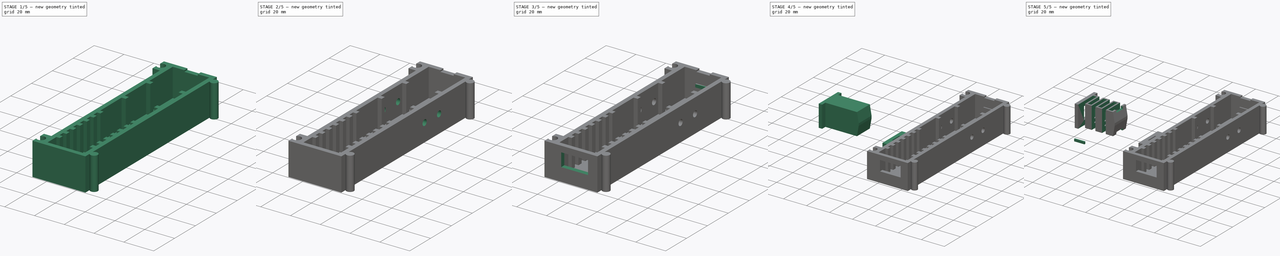
[diagram: build sequence overview — one tinted view per stage of 5, left to right]
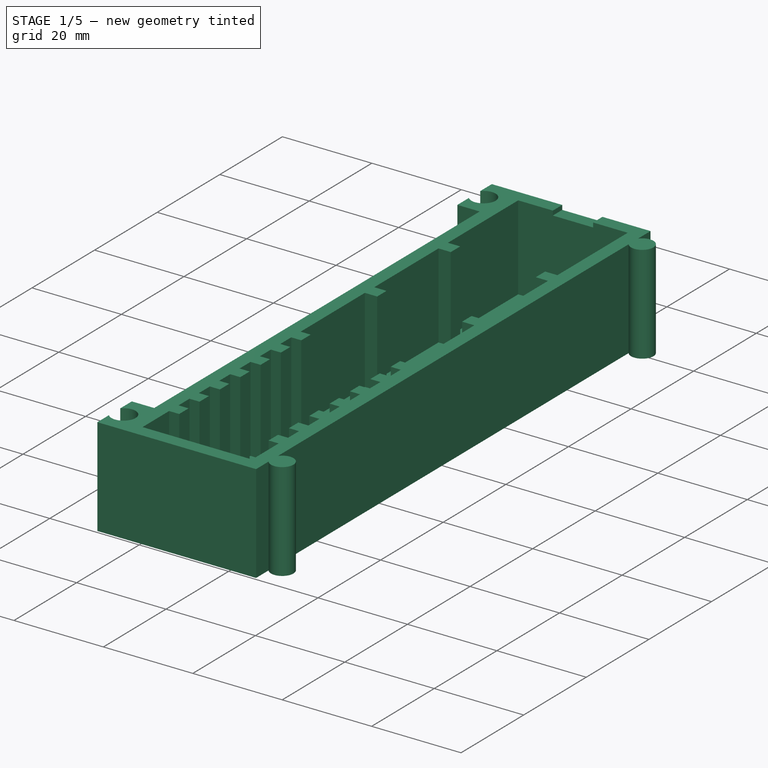
[diagram: stage 1 of 5 — iso view after this stage's code; geometry added in this stage tinted green]
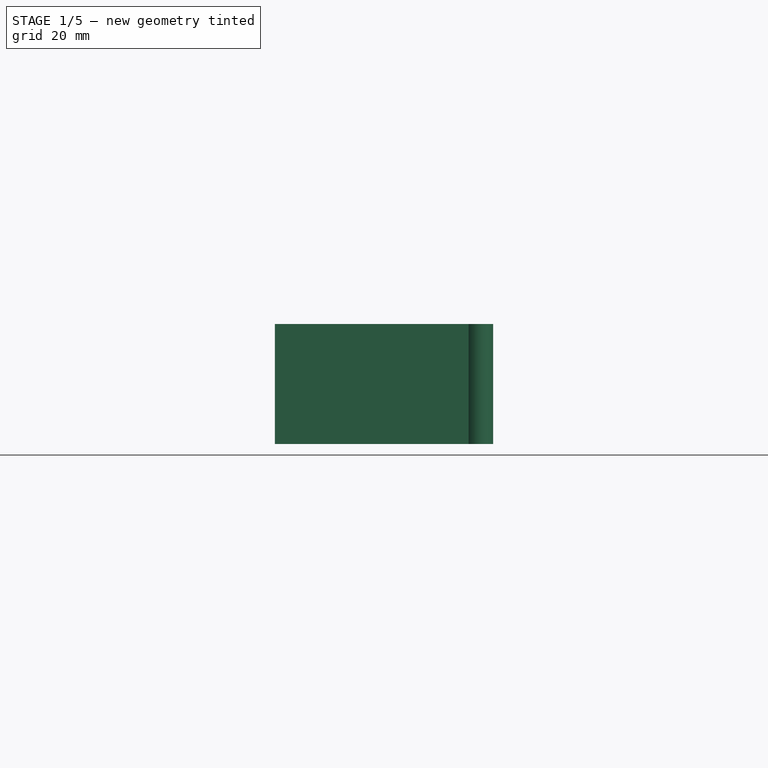
[diagram: stage 1 of 5 — front view after this stage's code; geometry added in this stage tinted green]
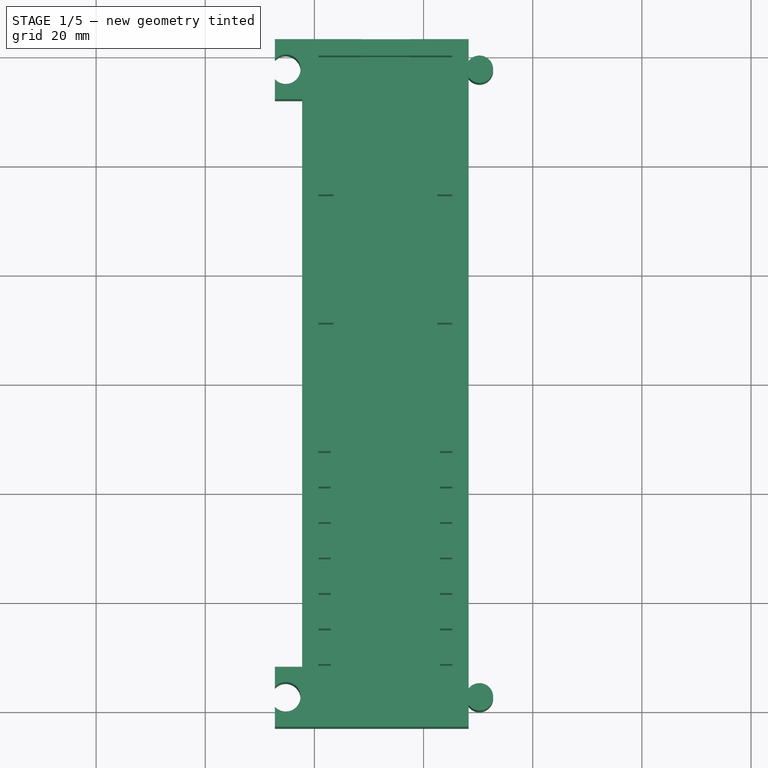
[diagram: stage 1 of 5 — top view after this stage's code; geometry added in this stage tinted green]
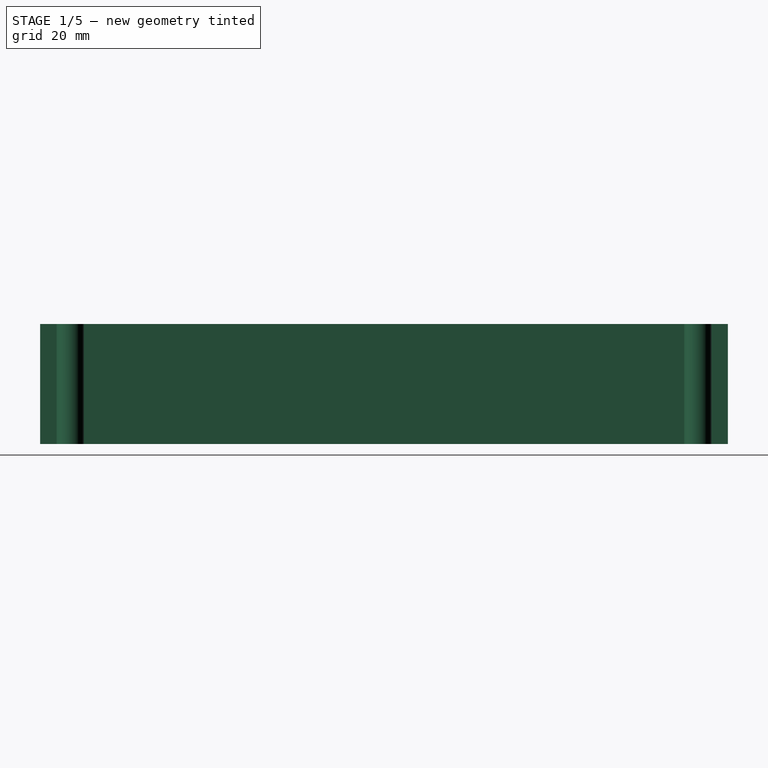
[diagram: stage 1 of 5 — right view after this stage's code; geometry added in this stage tinted green]
FCSTD DOCUMENT  (FreeCAD 0.16R6712 (Git))
Label: 18650BatteryHolder
License: All rights reserved
LicenseURL: http://en.wikipedia.org/wiki/All_rights_reserved
objects: Sketcher::SketchObject×15, PartDesign::Pocket×10, PartDesign::Pad×5, App::DocumentObjectGroup×3, PartDesign::Chamfer×2, Spreadsheet::Sheet×1
note: 47 computed .brp shape members not serialized (recipe doc carries the construction recipe); baked Part::Feature solids carry a one-line shape summary decoded from their .brp

FEATURE [Spreadsheet::Sheet] Spreadsheet  label="Parameters"
  cells = A1=Battery 18650 Length No Protection; B1(Battery18650LengthNoProtection)=65; A2=Battery 18650 Length Protection; B2(Battery18650LengthProtection)=70; A3=Battery 18650 Diameter; B3(Battery18650Diameter)=18; A4=External Wall Thickness; B4(ExternalWallThickness)=4; A5=Internal Wall Thickness; B5(InternalWallThickness)=3; A6=LEGO Hole Diameter; B6(LEGOHoleDiameter)=4.8; A7=LEGO Brick Depth; B7(LEGOBrickDepth)=7.8; A8=LEGO Horiz Step Between Holes; B8(LEGOHorizStepBetweenHoles)=8; A9=LEGO Vertical Step Between Holes; B9(LEGOVerticalStepBetweenHoles)=7; A10=Nut Pad Diameter; B10(NutPadDiameter)=6; A11=Bolt Hole Diameter; B11(BoltHoleDiameter)=4; A12=Very Small Addition; B12(VerySmallAddition)=1; A13=Small Addition; B13(SmallAddition)=2; A14=Medium Addition; B14(MediumAddition)=4; A15=Spring Contact Work Height; B15(SpringContactWorkHeight)=30; A16=Spring Contact Base Height; B16(SpringContactBaseHeight)=3; A17=Spring Contact Base Width; B17(SpringContactBaseWidth)=24; A18=Spring Contact Spring Work Width; B18(SpringContactSpringWorkWidth)=16; A19=SpringContactAxisToY; B19(SpringContactAxisToY)=33; A20=Spring Contact Spring Part Thickness; B20(SpringContactSpringPartThickness)=1.3; A21=Spring Contact Spring Part Gap; B21(SpringContactSpringPartGap)=3.2; A22=Wire Compartment Height; B22(WireCompartmentHeight)=20; A23=BatteryHolderAxisToY; B23(BatteryHolderAxisToY)=33; A24=BatteryHolderSideHolesRadius; B24(BatteryHolderSideHolesRadius)=2; A25=JunctionSocketRadius; B25(JunctionSocketRadius)=2.5; A26=JunctionSocketOffset; B26(JunctionSocketOffset)=2; A27=JunctionSocketGap; B27(JunctionSocketGap)=0.2
FEATURE [Sketcher::SketchObject] Sketch002  label="Brick for the battery holder"
  expr: Constraints[80] = Spreadsheet.JunctionSocketGap + Spreadsheet.JunctionSocketRadius
  expr: Constraints[45] = Spreadsheet.JunctionSocketRadius
  expr: Constraints[59] = Spreadsheet.JunctionSocketRadius * 2
  expr: Constraints[1] = Spreadsheet.InternalWallThickness * 2 + Spreadsheet.VerySmallAddition / 2 + Spreadsheet.SpringContactBaseWidth
  expr: Constraints[56] = Spreadsheet.JunctionSocketOffset
  expr: Constraints[57] = Spreadsheet.InternalWallThickness + Spreadsheet.JunctionSocketRadius
  expr: Constraints[2] = Spreadsheet.WireCompartmentHeight + Spreadsheet.InternalWallThickness * 2 + Spreadsheet.SpringContactWorkHeight + Spreadsheet.Battery18650LengthProtection
  expr: Constraints[58] = Spreadsheet.JunctionSocketGap + Spreadsheet.JunctionSocketRadius
  expr: Constraints[44] = Spreadsheet.JunctionSocketOffset
  expr: Constraints[63] = Spreadsheet.JunctionSocketRadius
  expr: Constraints[46] = Spreadsheet.JunctionSocketRadius + Spreadsheet.InternalWallThickness
  expr: Constraints[60] = Spreadsheet.JunctionSocketRadius * 2 + Spreadsheet.InternalWallThickness * 2
  sketch-geometry (27):
    g0: LineSegment StartX=17.75 StartY=63 StartZ=0 EndX=33 EndY=63 EndZ=0
    g1: LineSegment StartX=33 StartY=63 StartZ=0 EndX=48.25 EndY=63 EndZ=0
    g2: LineSegment [constr] StartX=33 StartY=63 StartZ=0 EndX=33 EndY=-63 EndZ=0
    g3: LineSegment StartX=12.75 StartY=52 StartZ=0 EndX=17.75 EndY=52 EndZ=0
    g4: LineSegment [constr] StartX=17.75 StartY=63 StartZ=0 EndX=17.75 EndY=52 EndZ=0
    g5: LineSegment StartX=12.75 StartY=63 StartZ=0 EndX=17.75 EndY=63 EndZ=0
    g6: LineSegment StartX=17.75 StartY=-63 StartZ=0 EndX=12.75 EndY=-63 EndZ=0
    g7: LineSegment StartX=12.75 StartY=-52 StartZ=0 EndX=17.75 EndY=-52 EndZ=0
    g8: LineSegment StartX=17.75 StartY=-52 StartZ=0 EndX=17.75 EndY=52 EndZ=0
    g9: LineSegment [constr] StartX=17.75 StartY=-52 StartZ=0 EndX=17.75 EndY=-63 EndZ=0
    g10: LineSegment StartX=48.25 StartY=56 StartZ=0 EndX=48.25 EndY=-56 EndZ=0
    g11: LineSegment StartX=17.75 StartY=-63 StartZ=0 EndX=33 EndY=-63 EndZ=0
    g12: LineSegment StartX=33 StartY=-63 StartZ=0 EndX=48.25 EndY=-63 EndZ=0
    g13: LineSegment StartX=48.25 StartY=63 StartZ=0 EndX=48.25 EndY=59 EndZ=0
    g14: LineSegment [constr] StartX=48.25 StartY=59 StartZ=0 EndX=48.25 EndY=56 EndZ=0
    g15: LineSegment StartX=48.25 StartY=-63 StartZ=0 EndX=48.25 EndY=-59 EndZ=0
    g16: LineSegment [constr] StartX=48.25 StartY=-59 StartZ=0 EndX=48.25 EndY=-56 EndZ=0
    g17: ArcOfCircle CenterX=50.25 CenterY=57.5 CenterZ=0 NormalX=0 NormalY=0 NormalZ=1 Radius=2.5 StartAngle=3.78509 EndAngle=8.78128
    g18: ArcOfCircle CenterX=50.25 CenterY=-57.5 CenterZ=0 NormalX=0 NormalY=0 NormalZ=1 Radius=2.5 StartAngle=3.78509 EndAngle=8.78128
    g19: LineSegment StartX=12.75 StartY=63 StartZ=0 EndX=12.75 EndY=59.3138 EndZ=0
    g20: LineSegment [constr] StartX=12.75 StartY=59.3138 StartZ=0 EndX=12.75 EndY=55.6862 EndZ=0
    g21: LineSegment StartX=12.75 StartY=55.6862 StartZ=0 EndX=12.75 EndY=52 EndZ=0
    g22: ArcOfCircle CenterX=14.75 CenterY=57.5 CenterZ=0 NormalX=0 NormalY=0 NormalZ=1 Radius=2.7 StartAngle=3.87822 EndAngle=8.68815
    g23: LineSegment StartX=12.75 StartY=-52 StartZ=0 EndX=12.75 EndY=-55.6862 EndZ=0
    g24: LineSegment [constr] StartX=12.75 StartY=-55.6862 StartZ=0 EndX=12.75 EndY=-59.3138 EndZ=0
    g25: LineSegment StartX=12.75 StartY=-59.3138 StartZ=0 EndX=12.75 EndY=-63 EndZ=0
    g26: ArcOfCircle CenterX=14.75 CenterY=-57.5 CenterZ=0 NormalX=0 NormalY=0 NormalZ=1 Radius=2.7 StartAngle=3.87822 EndAngle=8.68815
  constraints (81):
    c: Symmetric(g1,g12,g-1)
    c: DistanceX(g0,g1) = 30.5
    c: DistanceY(g12,g1) = 126
    c: Horizontal(g0)
    c: Coincident(g1,g0)
    c: Horizontal(g1)
    c: Equal(g0,g1)
    c: Coincident(g2,g0)
    c: Vertical(g2)
    c: DistanceX(g-1,g0) = 33
    c: Coincident(g4,g3)
    c: Vertical(g4)
    c: Horizontal(g3)
    c: Symmetric(g0,g6,g-1)
    c: Coincident(g0,g4)
    c: Coincident(g5,g0)
    c: Horizontal(g5)
    c: Horizontal(g6)
    c: Horizontal(g7)
    c: Coincident(g8,g3)
    c: Vertical(g8)
    c: Coincident(g7,g8)
    c: Coincident(g9,g7)
    c: Vertical(g9)
    c: Vertical(g10)
    c: Symmetric(g5,g6,g-1)
    c: Coincident(g11,g6)
    c: Coincident(g11,g2)
    c: Horizontal(g11)
    c: Coincident(g12,g2)
    c: Horizontal(g12)
    c: Coincident(g13,g1)
    c: Vertical(g13)
    c: Coincident(g14,g13)
    c: Coincident(g14,g10)
    c: Coincident(g15,g12)
    c: Vertical(g15)
    c: Coincident(g16,g15)
    c: Coincident(g16,g10)
    c: Vertical(g16)
    c: Coincident(g17,g13)
    c: Coincident(g17,g10)
    c: Coincident(g18,g10)
    c: Coincident(g18,g15)
    c: DistanceX(g1,g17) = 2
    c: Radius(g17) = 2.5
    c: DistanceY(g17,g1) = 5.5
    c: Coincident(g19,g5)
    c: Vertical(g19)
    c: Coincident(g20,g19)
    c: Vertical(g20)
    c: Coincident(g21,g20)
    c: Coincident(g21,g3)
    c: Vertical(g21)
    c: Coincident(g22,g19)
    c: Coincident(g22,g20)
    c: DistanceX(g5,g22) = 2
    c: DistanceY(g22,g5) = 5.5
    c: Radius(g22) = 2.7
    c: DistanceX(g3,g3) = 5
    c: DistanceY(g3,g5) = 11
    c: Equal(g16,g14)
    c: Equal(g13,g15)
    c: Radius(g18) = 2.5
    c: Equal(g3,g7)
    c: Equal(g7,g6)
    c: Equal(g4,g9)
    c: Vertical(g23)
    c: Coincident(g24,g23)
    c: Vertical(g24)
    c: Coincident(g25,g24)
    c: Coincident(g25,g6)
    c: Vertical(g25)
    c: Coincident(g26,g23)
    c: Coincident(g26,g24)
    c: Coincident(g7,g23)
    c: Equal(g24,g20)
    c: Equal(g19,g21)
    c: Equal(g21,g23)
    c: Equal(g23,g25)
    c: Radius(g26) = 2.7
FEATURE [PartDesign::Pad] Pad  label="Brick for the battery holder pad"
  Length = 22
  Length2 = 100
  Sketch = -> Sketch002
  Type = 0
  expr: Length = Spreadsheet.InternalWallThickness + Spreadsheet.VerySmallAddition + Spreadsheet.Battery18650Diameter
FEATURE [App::DocumentObjectGroup] Group  label="Spring Contact"
  Group = -> [Pad001,Pocket004,Pocket010,Pocket011,Pocket012]
FEATURE [PartDesign::Pocket] Pocket  label="Battery Holder Main Compartment"
  Length = 19
  Sketch = -> Sketch001
  Type = 0
  expr: Length = Spreadsheet.Battery18650Diameter + Spreadsheet.VerySmallAddition
FEATURE [Sketcher::SketchObject] Sketch003  label="Battery holder holes for the fixed contact"
  Placement = pos=(0,63,0) rot=(0,0.707107,0.707107;3.14159rad)
  Support = -> Pocket [Face2]
  expr: Constraints[31] = Spreadsheet.VerySmallAddition + Spreadsheet.InternalWallThickness + Spreadsheet.Battery18650Diameter
  expr: Constraints[27] = Spreadsheet.SmallAddition
  expr: Constraints[29] = Spreadsheet.Battery18650Diameter / 2
  expr: Constraints[26] = Spreadsheet.VerySmallAddition + Spreadsheet.InternalWallThickness
  sketch-geometry (11):
    g0: LineSegment StartX=-37.5 StartY=6 StartZ=0 EndX=-28.5 EndY=6 EndZ=0
    g1: LineSegment StartX=-28.5 StartY=6 StartZ=0 EndX=-28.5 EndY=4 EndZ=0
    g2: LineSegment StartX=-28.5 StartY=4 StartZ=0 EndX=-37.5 EndY=4 EndZ=0
    g3: LineSegment StartX=-37.5 StartY=4 StartZ=0 EndX=-37.5 EndY=6 EndZ=0
    g4: LineSegment [constr] StartX=-17.75 StartY=22 StartZ=0 EndX=-33 EndY=22 EndZ=0
    g5: LineSegment [constr] StartX=-33 StartY=22 StartZ=0 EndX=-17.75 EndY=22 EndZ=0
    g6: LineSegment [constr] StartX=-33 StartY=22 StartZ=0 EndX=-33 EndY=0 EndZ=0
    g7: LineSegment StartX=-37.5 StartY=23 StartZ=0 EndX=-28.5 EndY=23 EndZ=0
    g8: LineSegment StartX=-28.5 StartY=23 StartZ=0 EndX=-28.5 EndY=21 EndZ=0
    g9: LineSegment StartX=-28.5 StartY=21 StartZ=0 EndX=-37.5 EndY=21 EndZ=0
    g10: LineSegment StartX=-37.5 StartY=21 StartZ=0 EndX=-37.5 EndY=23 EndZ=0
  constraints (32):
    c: Coincident(g0,g1)
    c: Coincident(g1,g2)
    c: Coincident(g2,g3)
    c: Coincident(g3,g0)
    c: Horizontal(g0)
    c: Horizontal(g2)
    c: Vertical(g1)
    c: Vertical(g3)
    c: Horizontal(g5)
    c: Coincident(g4,g5)
    c: Equal(g4,g5)
    c: Vertical(g6)
    c: Coincident(g4,g6)
    c: Symmetric(g2,g1,g6)
    c: Symmetric(g0,g0,g6)
    c: Coincident(g7,g8)
    c: Coincident(g8,g9)
    c: Coincident(g9,g10)
    c: Coincident(g10,g7)
    c: Horizontal(g7)
    c: Horizontal(g9)
    c: Vertical(g8)
    c: Vertical(g10)
    c: Symmetric(g9,g8,g6)
    c: Equal(g9,g0)
    c: Equal(g10,g3)
    c: DistanceY(g6,g1) = 4
    c: DistanceY(g1,g0) = 2
    c: Symmetric(g7,g9,g4)
    c: DistanceX(g2,g1) = 9
    c: DistanceX(g6,g-1) = 33
    c: DistanceY(g6,g4) = 22
FEATURE [PartDesign::Pocket] Pocket013  label="Battery Holder Holes for the Fixed Contact"
  Length = 5
  Sketch = -> Sketch003
  Type = 0
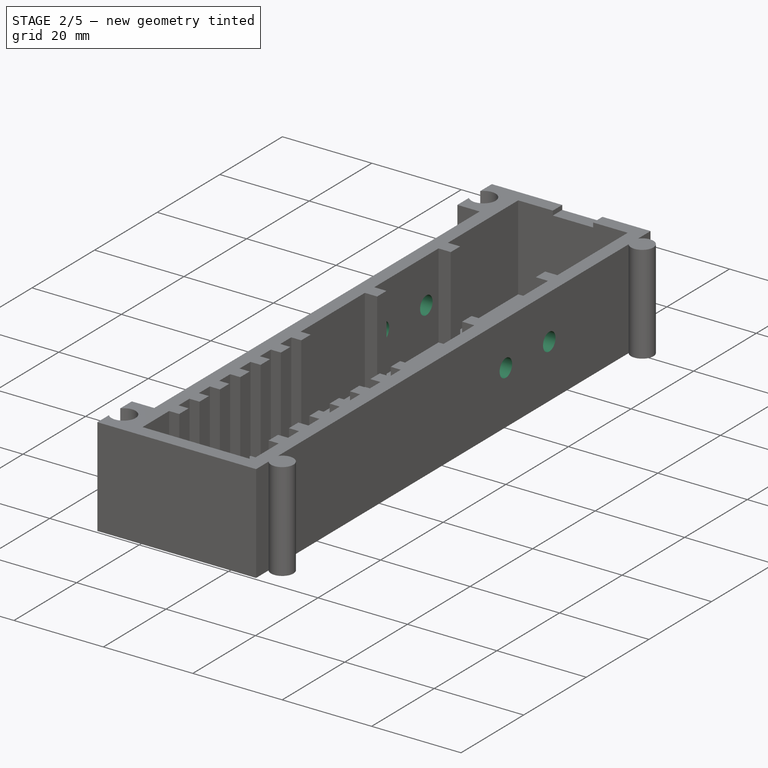
[diagram: stage 2 of 5 — iso view after this stage's code; geometry added in this stage tinted green]
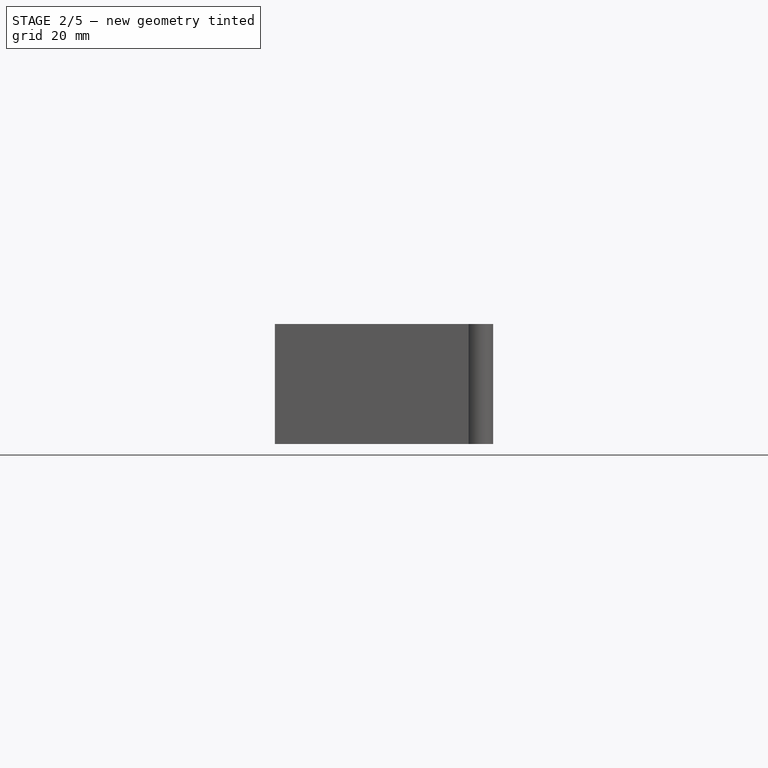
[diagram: stage 2 of 5 — front view after this stage's code; geometry added in this stage tinted green]
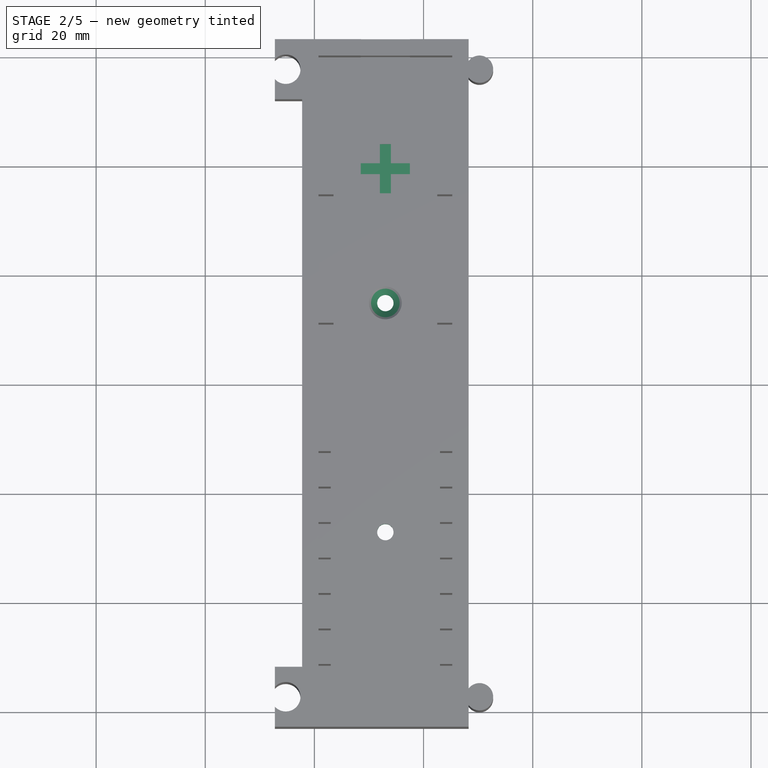
[diagram: stage 2 of 5 — top view after this stage's code; geometry added in this stage tinted green]
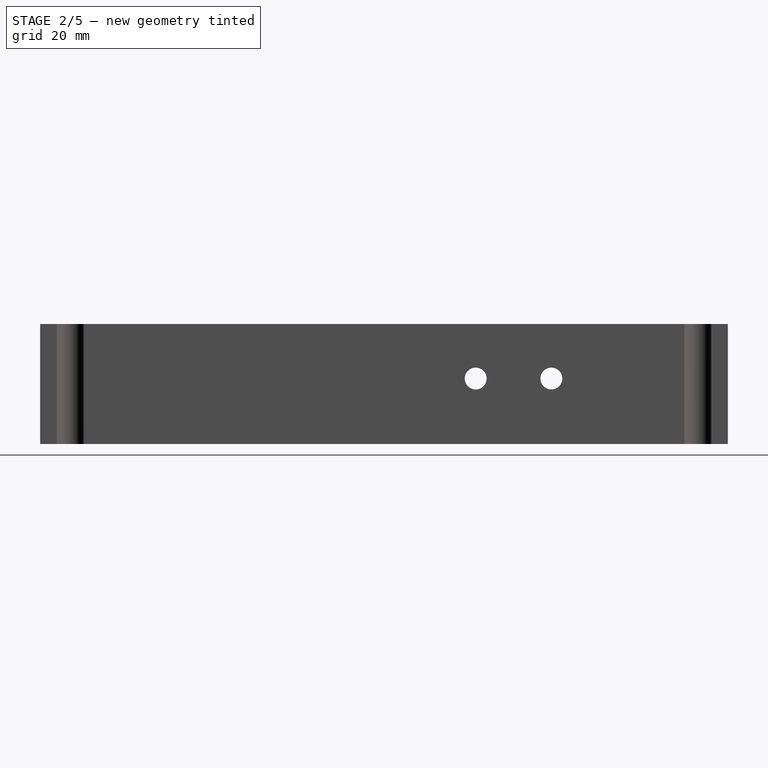
[diagram: stage 2 of 5 — right view after this stage's code; geometry added in this stage tinted green]
FEATURE [Sketcher::SketchObject] Sketch005  label="Battery holder side holes"
  Placement = pos=(48.25,0,0) rot=(0.57735,0.57735,0.57735;2.0944rad)
  Support = -> Pocket013 [Face14]
  expr: Constraints[9] = Spreadsheet.InternalWallThickness + Spreadsheet.Battery18650LengthProtection * 0.66 - Spreadsheet.BatteryHolderSideHolesRadius - Spreadsheet.VerySmallAddition
  expr: Constraints[4] = Spreadsheet.WireCompartmentHeight + Spreadsheet.InternalWallThickness * 2 + Spreadsheet.SpringContactWorkHeight + Spreadsheet.Battery18650LengthProtection
  expr: Constraints[6] = Spreadsheet.BatteryHolderSideHolesRadius + Spreadsheet.VerySmallAddition + Spreadsheet.InternalWallThickness * 2 + Spreadsheet.Battery18650LengthProtection / 3
  expr: Constraints[7] = Spreadsheet.InternalWallThickness + Spreadsheet.Battery18650Diameter / 2
  expr: Constraints[1] = Spreadsheet.BatteryHolderSideHolesRadius
  sketch-geometry (3):
    g0: Circle CenterX=30.6667 CenterY=12 CenterZ=0 NormalX=0 NormalY=0 NormalZ=1 Radius=2
    g1: Circle CenterX=16.8 CenterY=12 CenterZ=0 NormalX=0 NormalY=0 NormalZ=1 Radius=2
    g2: LineSegment [constr] StartX=-63 StartY=12 StartZ=0 EndX=63 EndY=12 EndZ=0
  constraints (10):
    c: Radius(g1) = 2
    c: Radius(g0) = 2
    c: Horizontal(g2)
    c: Symmetric(g2,g2,g-2)
    c: DistanceX(g2,g2) = 126
    c: PointOnObject(g0,g2)
    c: DistanceX(g0,g2) = 32.3333
    c: DistanceY(g-1,g2) = 12
    c: PointOnObject(g1,g2)
    c: DistanceX(g1,g2) = 46.2
FEATURE [PartDesign::Pocket] Pocket014  label="Battery Holder Side Holes"
  Length = 34
  Sketch = -> Sketch005
  Type = 0
  expr: Length = Spreadsheet.InternalWallThickness * 2 + Spreadsheet.MediumAddition + Spreadsheet.SpringContactBaseWidth
FEATURE [Sketcher::SketchObject] Sketch012  label="Battery holder the Plus sign"
  Placement = pos=(0,0,3) rot=(0,0,1;0rad)
  Support = -> Pocket014 [Face106]
  expr: Constraints[41] = (Spreadsheet.WireCompartmentHeight + Spreadsheet.InternalWallThickness * 2 + Spreadsheet.SpringContactWorkHeight + Spreadsheet.Battery18650LengthProtection) * 0.15
  expr: Constraints[14] = Spreadsheet.BatteryHolderAxisToY
  expr: Constraints[12] = Spreadsheet.WireCompartmentHeight + Spreadsheet.InternalWallThickness * 2 + Spreadsheet.SpringContactWorkHeight + Spreadsheet.Battery18650LengthProtection
  sketch-geometry (13):
    g0: LineSegment StartX=32 StartY=44.1 StartZ=0 EndX=34 EndY=44.1 EndZ=0
    g1: LineSegment StartX=34 StartY=44.1 StartZ=0 EndX=34 EndY=40.6 EndZ=0
    g2: LineSegment StartX=34 StartY=40.6 StartZ=0 EndX=37.5 EndY=40.6 EndZ=0
    g3: LineSegment StartX=37.5 StartY=40.6 StartZ=0 EndX=37.5 EndY=38.6 EndZ=0
    g4: LineSegment StartX=37.5 StartY=38.6 StartZ=0 EndX=34 EndY=38.6 EndZ=0
    g5: LineSegment StartX=34 StartY=38.6 StartZ=0 EndX=34 EndY=35.1 EndZ=0
    g6: LineSegment StartX=34 StartY=35.1 StartZ=0 EndX=32 EndY=35.1 EndZ=0
    g7: LineSegment StartX=32 StartY=35.1 StartZ=0 EndX=32 EndY=38.6 EndZ=0
    g8: LineSegment StartX=32 StartY=38.6 StartZ=0 EndX=28.5 EndY=38.6 EndZ=0
    g9: LineSegment StartX=28.5 StartY=38.6 StartZ=0 EndX=28.5 EndY=40.6 EndZ=0
    g10: LineSegment StartX=28.5 StartY=40.6 StartZ=0 EndX=32 EndY=40.6 EndZ=0
    g11: LineSegment StartX=32 StartY=40.6 StartZ=0 EndX=32 EndY=44.1 EndZ=0
    g12: LineSegment [constr] StartX=33 StartY=63 StartZ=0 EndX=33 EndY=-63 EndZ=0
  constraints (42):
    c: Coincident(g0,g1)
    c: Coincident(g0,g11)
    c: Coincident(g1,g2)
    c: Coincident(g2,g3)
    c: Coincident(g4,g3)
    c: Coincident(g5,g4)
    c: Coincident(g6,g5)
    c: Coincident(g6,g7)
    c: Coincident(g8,g7)
    c: Coincident(g8,g9)
    c: Coincident(g9,g10)
    c: Coincident(g10,g11)
    c: DistanceY(g12,g12) = 126
    c: Symmetric(g12,g12,g-1)
    c: DistanceX(g-1,g12) = 33
    c: Vertical(g11)
    c: Vertical(g1)
    c: Vertical(g5)
    c: Vertical(g7)
    c: Vertical(g9)
    c: Vertical(g3)
    c: Horizontal(g8)
    c: Horizontal(g10)
    c: Horizontal(g6)
    c: Horizontal(g0)
    c: Horizontal(g2)
    c: Horizontal(g4)
    c: Symmetric(g10,g1,g12)
    c: Symmetric(g7,g4,g12)
    c: Equal(g0,g6)
    c: Equal(g6,g9)
    c: Equal(g9,g3)
    c: DistanceY(g3,g2) = 2
    c: DistanceX(g1,g2) = 3.5
    c: Equal(g2,g4)
    c: Equal(g4,g5)
    c: Equal(g5,g7)
    c: Equal(g7,g8)
    c: Equal(g8,g10)
    c: Equal(g10,g11)
    c: Equal(g11,g1)
    c: DistanceY(g0,g12) = 18.9
FEATURE [PartDesign::Pocket] Pocket015  label="Battery Holder Plus sign"
  Length = 1
  Sketch = -> Sketch012
  Type = 0
FEATURE [Sketcher::SketchObject] Sketch013  label="Battery holder holes for bolts in bottom"
  Placement = pos=(0,0,3) rot=(0,0,1;0rad)
  Support = -> Pocket015 [Face106]
  expr: Constraints[7] = (Spreadsheet.WireCompartmentHeight + Spreadsheet.SpringContactWorkHeight + Spreadsheet.Battery18650LengthProtection) * 0.75
  expr: Constraints[6] = (Spreadsheet.WireCompartmentHeight + Spreadsheet.SpringContactWorkHeight + Spreadsheet.Battery18650LengthProtection) * 0.4
  expr: Constraints[4] = Spreadsheet.WireCompartmentHeight + Spreadsheet.InternalWallThickness * 2 + Spreadsheet.SpringContactWorkHeight + Spreadsheet.Battery18650LengthProtection
  sketch-geometry (3):
    g0: LineSegment [constr] StartX=33 StartY=63 StartZ=0 EndX=33 EndY=-63 EndZ=0
    g1: Circle CenterX=33 CenterY=15 CenterZ=0 NormalX=0 NormalY=0 NormalZ=1 Radius=1.5
    g2: Circle CenterX=33 CenterY=-27 CenterZ=0 NormalX=0 NormalY=0 NormalZ=1 Radius=1.5
  constraints (10):
    c: DistanceX(g-1,g0) = 33
    c: Vertical(g0)
    c: PointOnObject(g2,g0)
    c: PointOnObject(g1,g0)
    c: DistanceY(g0,g0) = 126
    c: Symmetric(g0,g0,g-1)
    c: DistanceY(g1,g0) = 48
    c: DistanceY(g2,g0) = 90
    c: Radius(g1) = 1.5
    c: Radius(g2) = 1.5
FEATURE [PartDesign::Pocket] Pocket016  label="Battery Holder bottom bolt holes"
  Length = 5
  Sketch = -> Sketch013
  Type = 0
FEATURE [PartDesign::Chamfer] Chamfer  label="Battery Holder Bottom Bolt 1 Chamfer"
  Base = -> Pocket016 [Edge157]
  Size = 1.5
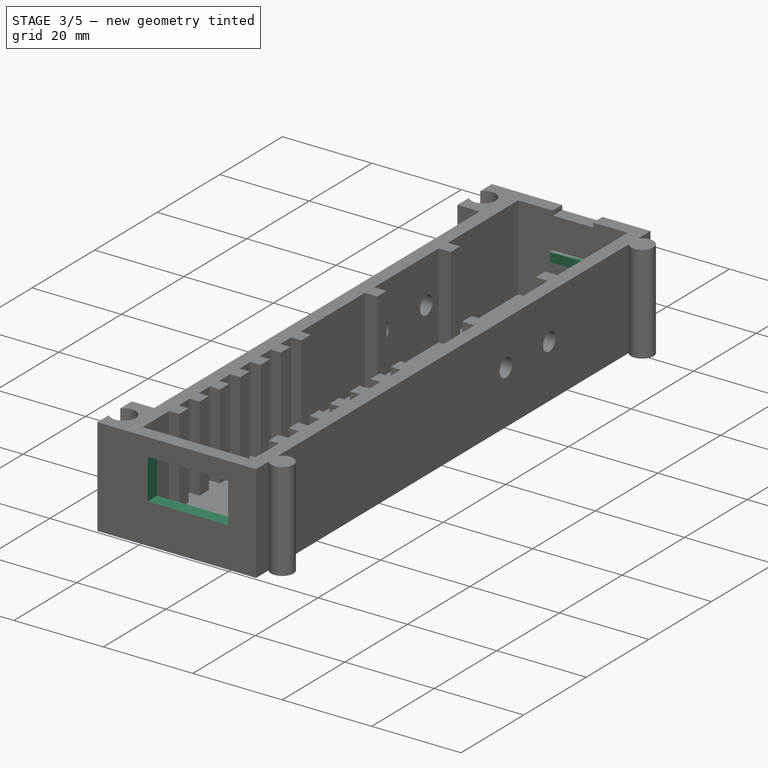
[diagram: stage 3 of 5 — iso view after this stage's code; geometry added in this stage tinted green]
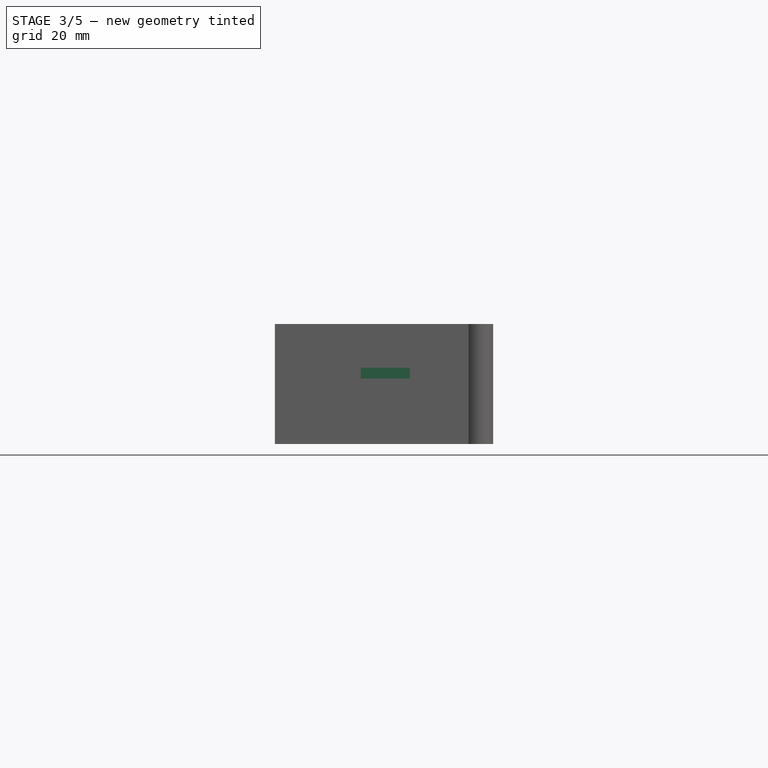
[diagram: stage 3 of 5 — front view after this stage's code; geometry added in this stage tinted green]
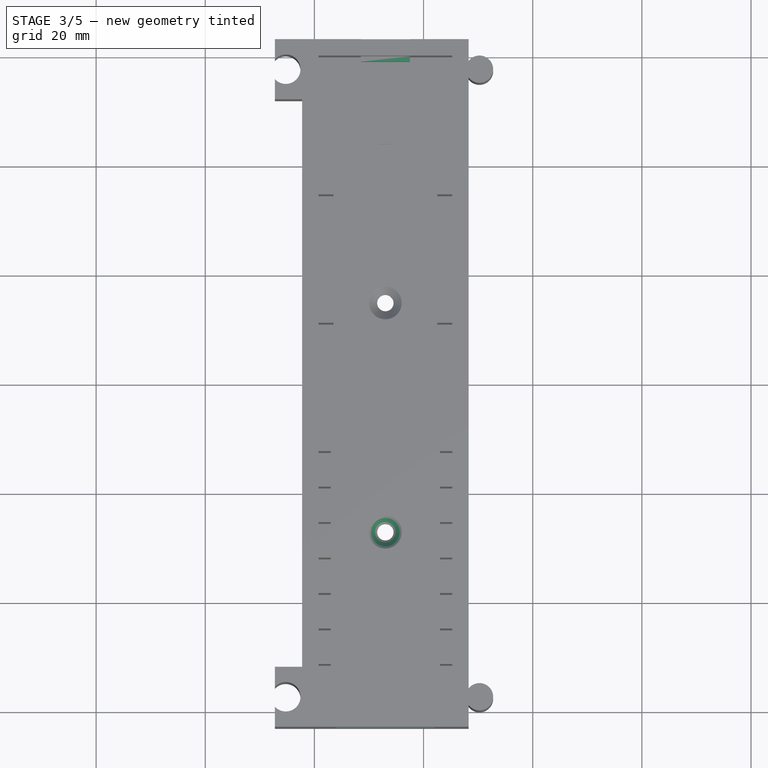
[diagram: stage 3 of 5 — top view after this stage's code; geometry added in this stage tinted green]
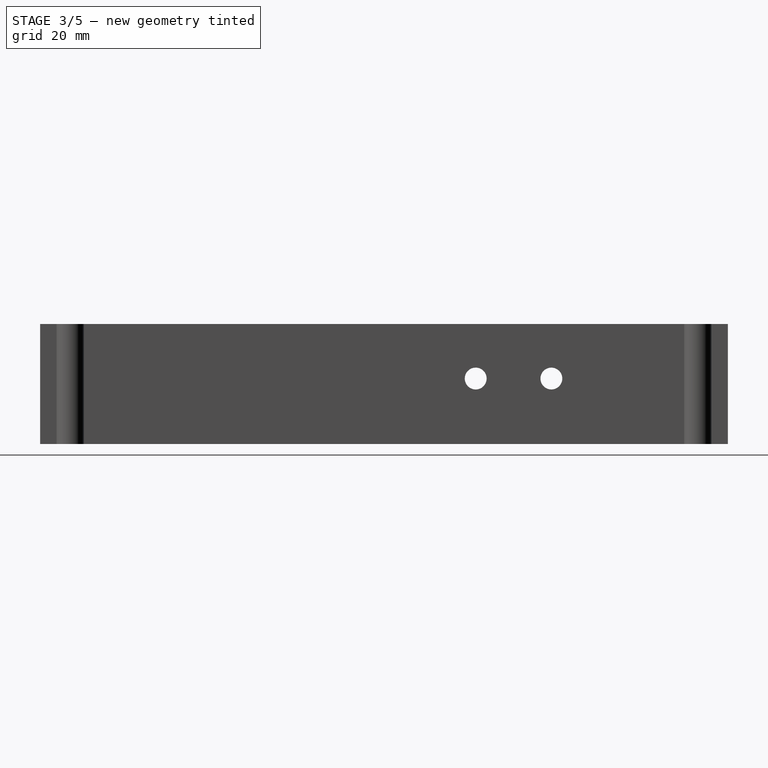
[diagram: stage 3 of 5 — right view after this stage's code; geometry added in this stage tinted green]
FEATURE [PartDesign::Chamfer] Chamfer001  label="Battery Holder Bottom Bolt 2 Chamfer"
  Base = -> Chamfer [Edge99]
  Size = 1.5
FEATURE [App::DocumentObjectGroup] Group003  label="Base Contact Plate"
  Group = -> [Pad003]
FEATURE [Sketcher::SketchObject] Sketch021  label="Bottom Wire Well"
  Placement = pos=(0,-63,0) rot=(1,0,0;1.5708rad)
  Support = -> Chamfer001 [Face114]
  expr: Constraints[18] = Spreadsheet.BatteryHolderAxisToY
  expr: Constraints[19] = Spreadsheet.Battery18650Diameter
  expr: Constraints[21] = Spreadsheet.Battery18650Diameter / 2
  expr: Constraints[20] = Spreadsheet.Battery18650Diameter / 2
  sketch-geometry (7):
    g0: LineSegment StartX=24 StartY=18 StartZ=0 EndX=24 EndY=9 EndZ=0
    g1: LineSegment StartX=24 StartY=9 StartZ=0 EndX=33 EndY=9 EndZ=0
    g2: LineSegment [constr] StartX=33 StartY=9 StartZ=0 EndX=33 EndY=18 EndZ=0
    g3: LineSegment StartX=33 StartY=9 StartZ=0 EndX=42 EndY=9 EndZ=0
    g4: LineSegment StartX=42 StartY=9 StartZ=0 EndX=42 EndY=18 EndZ=0
    g5: LineSegment StartX=42 StartY=18 StartZ=0 EndX=33 EndY=18 EndZ=0
    g6: LineSegment StartX=33 StartY=18 StartZ=0 EndX=24 EndY=18 EndZ=0
  constraints (22):
    c: Coincident(g1,g0)
    c: Horizontal(g1)
    c: Coincident(g2,g1)
    c: Vertical(g2)
    c: Coincident(g3,g1)
    c: Coincident(g4,g3)
    c: Vertical(g4)
    c: Coincident(g5,g4)
    c: Coincident(g5,g2)
    c: Coincident(g6,g2)
    c: Coincident(g6,g0)
    c: Horizontal(g6)
    c: Equal(g6,g1)
    c: Equal(g1,g3)
    c: Equal(g3,g5)
    c: Equal(g0,g4)
    c: Symmetric(g4,g0,g2)
    c: Symmetric(g0,g3,g2)
    c: DistanceX(g-1,g1) = 33
    c: DistanceX(g0,g4) = 18
    c: DistanceY(g0,g0) = 9
    c: DistanceY(g-1,g1) = 9
FEATURE [PartDesign::Pocket] Pocket017  label="Bottom Wire Well Pocket"
  Length = 7
  Sketch = -> Sketch021
  Type = 0
  expr: Length = Spreadsheet.MediumAddition + Spreadsheet.InternalWallThickness
FEATURE [Sketcher::SketchObject] Sketch022  label="Fixed Contact Support"
  Placement = pos=(0,60,0) rot=(1,0,0;1.5708rad)
  Support = -> Pocket017 [Face17]
  expr: Constraints[21] = Spreadsheet.SmallAddition
  expr: Constraints[20] = Spreadsheet.Battery18650Diameter / 2
  expr: Constraints[19] = Spreadsheet.Battery18650Diameter / 2 + Spreadsheet.InternalWallThickness
  expr: Constraints[18] = Spreadsheet.BatteryHolderAxisToY
  sketch-geometry (7):
    g0: LineSegment StartX=28.5 StartY=14 StartZ=0 EndX=28.5 EndY=12 EndZ=0
    g1: LineSegment StartX=28.5 StartY=12 StartZ=0 EndX=33 EndY=12 EndZ=0
    g2: LineSegment [constr] StartX=33 StartY=12 StartZ=0 EndX=33 EndY=14 EndZ=0
    g3: LineSegment StartX=33 StartY=14 StartZ=0 EndX=28.5 EndY=14 EndZ=0
    g4: LineSegment StartX=33 StartY=14 StartZ=0 EndX=37.5 EndY=14 EndZ=0
    g5: LineSegment StartX=37.5 StartY=14 StartZ=0 EndX=37.5 EndY=12 EndZ=0
    g6: LineSegment StartX=37.5 StartY=12 StartZ=0 EndX=33 EndY=12 EndZ=0
  constraints (22):
    c: Coincident(g1,g0)
    c: Coincident(g2,g1)
    c: Coincident(g3,g2)
    c: Coincident(g3,g0)
    c: Horizontal(g3)
    c: Coincident(g4,g2)
    c: Horizontal(g4)
    c: Coincident(g5,g4)
    c: Vertical(g5)
    c: Coincident(g6,g5)
    c: Coincident(g6,g1)
    c: Horizontal(g1)
    c: Horizontal(g6)
    c: Vertical(g0)
    c: Equal(g3,g1)
    c: Equal(g1,g4)
    c: Equal(g4,g6)
    c: Equal(g0,g5)
    c: DistanceX(g-1,g2) = 33
    c: DistanceY(g-1,g1) = 12
    c: DistanceX(g0,g4) = 9
    c: DistanceY(g0,g0) = 2
FEATURE [PartDesign::Pad] Pad004  label="Fixed Contact Support Pad"
  Length = 1
  Length2 = 100
  Sketch = -> Sketch022
  Type = 0
  expr: Length = Spreadsheet.VerySmallAddition
FEATURE [App::DocumentObjectGroup] Group001  label="Battery Holder"
  Group = -> [Pad,Pad002,Pocket,Pocket013,Pocket014,Pocket015,Pocket016,Chamfer,Chamfer001,Pocket017,Pad004]
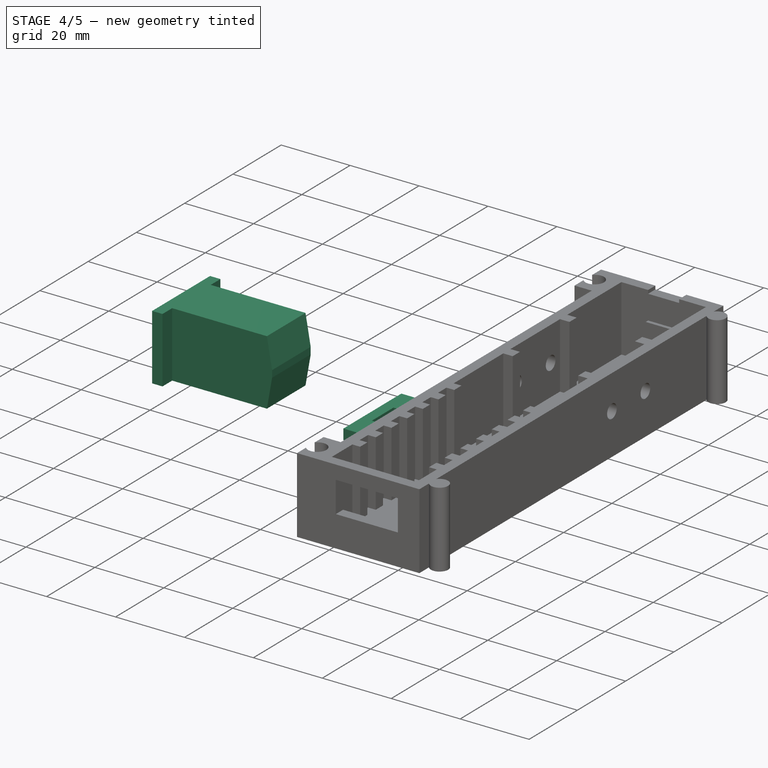
[diagram: stage 4 of 5 — iso view after this stage's code; geometry added in this stage tinted green]
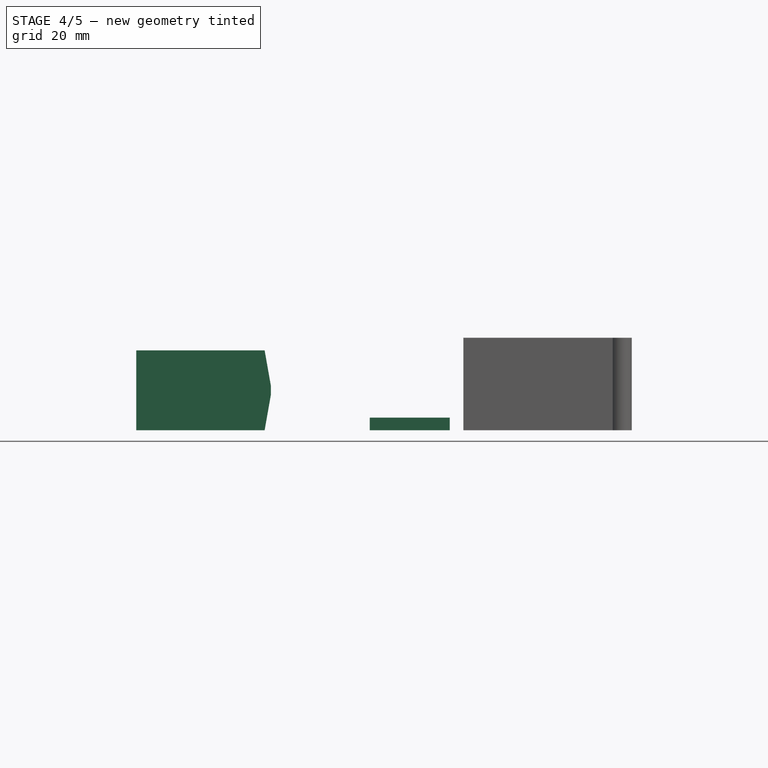
[diagram: stage 4 of 5 — front view after this stage's code; geometry added in this stage tinted green]
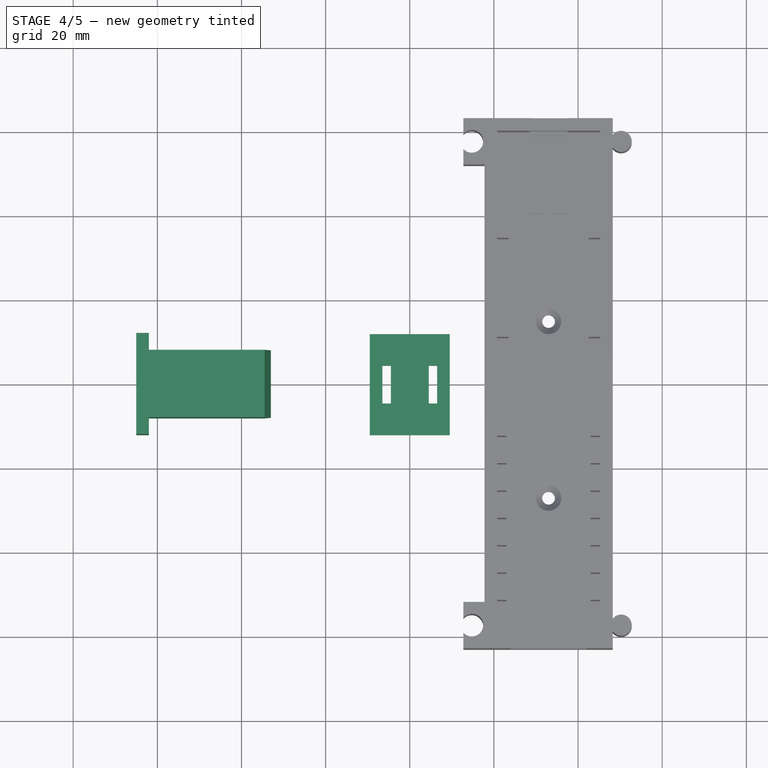
[diagram: stage 4 of 5 — top view after this stage's code; geometry added in this stage tinted green]
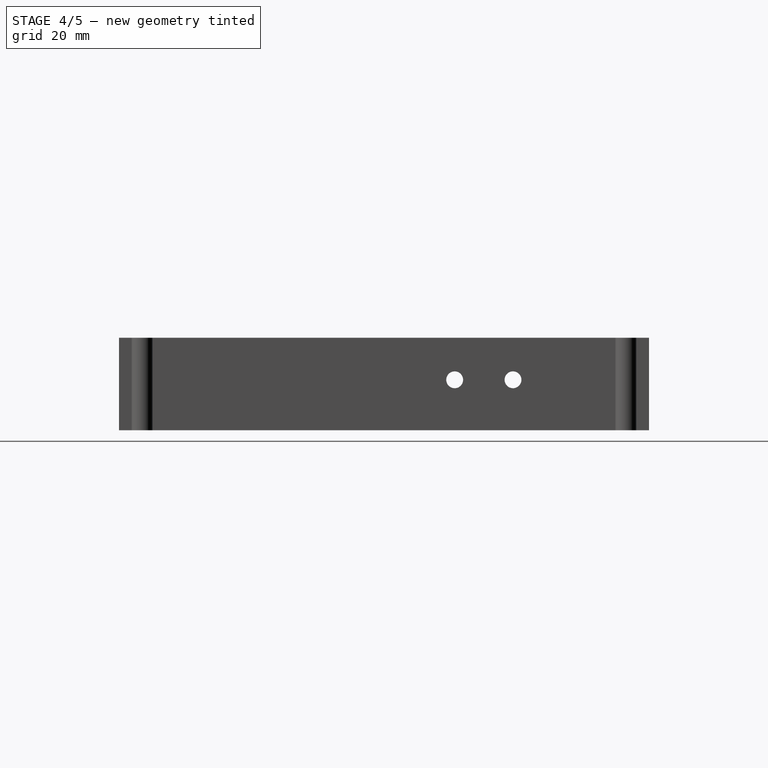
[diagram: stage 4 of 5 — right view after this stage's code; geometry added in this stage tinted green]
FEATURE [Sketcher::SketchObject] Sketch001  label="Battery holder main compartment"
  Placement = pos=(0,0,22) rot=(0,0,1;0rad)
  Support = -> Pad [Face16]
  expr: Constraints[91] = Spreadsheet.BatteryHolderAxisToY
  expr: Constraints[66] = Spreadsheet.MediumAddition + Spreadsheet.SpringContactSpringWorkWidth
  expr: Constraints[93] = Spreadsheet.WireCompartmentHeight + Spreadsheet.SpringContactWorkHeight + Spreadsheet.Battery18650LengthProtection
  expr: Constraints[30] = Spreadsheet.InternalWallThickness
  expr: Constraints[67] = Spreadsheet.SpringContactBaseHeight + Spreadsheet.VerySmallAddition / 2
  expr: Constraints[33] = Spreadsheet.Battery18650LengthProtection + Spreadsheet.SmallAddition * 3
  expr: Constraints[0] = Spreadsheet.VerySmallAddition / 2 + Spreadsheet.SpringContactBaseWidth
  sketch-geometry (77):
    g0: LineSegment StartX=20.75 StartY=60 StartZ=0 EndX=45.25 EndY=60 EndZ=0
    g1: LineSegment [constr] StartX=33 StartY=60 StartZ=0 EndX=33 EndY=-60 EndZ=0
    g2: LineSegment StartX=45.25 StartY=60 StartZ=0 EndX=45.25 EndY=37.55 EndZ=0
    g3: LineSegment StartX=45.25 StartY=37.55 StartZ=0 EndX=42.5 EndY=37.55 EndZ=0
    g4: LineSegment StartX=42.5 StartY=37.55 StartZ=0 EndX=42.5 EndY=34.55 EndZ=0
    g5: LineSegment StartX=42.5 StartY=34.55 StartZ=0 EndX=45.25 EndY=34.55 EndZ=0
    g6: LineSegment StartX=45.25 StartY=34.55 StartZ=0 EndX=45.25 EndY=14.025 EndZ=0
    g7: LineSegment StartX=45.25 StartY=14.025 StartZ=0 EndX=42.5 EndY=14.025 EndZ=0
    g8: LineSegment StartX=42.5 StartY=14.025 StartZ=0 EndX=42.5 EndY=11.025 EndZ=0
    g9: LineSegment StartX=42.5 StartY=11.025 StartZ=0 EndX=45.25 EndY=11.025 EndZ=0
    g10: LineSegment StartX=45.25 StartY=11.025 StartZ=0 EndX=45.25 EndY=-9.5 EndZ=0
    g11: LineSegment StartX=45.25 StartY=-9.5 StartZ=0 EndX=43 EndY=-9.5 EndZ=0
    g12: LineSegment StartX=43 StartY=-9.5 StartZ=0 EndX=43 EndY=-12.5 EndZ=0
    g13: LineSegment StartX=43 StartY=-12.5 StartZ=0 EndX=45.25 EndY=-12.5 EndZ=0
    g14: LineSegment StartX=45.25 StartY=-12.5 StartZ=0 EndX=45.25 EndY=-16 EndZ=0
    g15: LineSegment StartX=45.25 StartY=-16 StartZ=0 EndX=43 EndY=-16 EndZ=0
    g16: LineSegment StartX=20.75 StartY=60 StartZ=0 EndX=20.75 EndY=37.55 EndZ=0
    g17: LineSegment StartX=20.75 StartY=37.55 StartZ=0 EndX=23.5 EndY=37.55 EndZ=0
    g18: LineSegment StartX=23.5 StartY=37.55 StartZ=0 EndX=23.5 EndY=34.55 EndZ=0
    g19: LineSegment StartX=23.5 StartY=34.55 StartZ=0 EndX=20.75 EndY=34.55 EndZ=0
    g20: LineSegment StartX=20.75 StartY=34.55 StartZ=0 EndX=20.75 EndY=14.025 EndZ=0
    g21: LineSegment StartX=20.75 StartY=14.025 StartZ=0 EndX=23.5 EndY=14.025 EndZ=0
    g22: LineSegment StartX=23.5 StartY=11.025 StartZ=0 EndX=20.75 EndY=11.025 EndZ=0
    g23: LineSegment StartX=20.75 StartY=11.025 StartZ=0 EndX=20.75 EndY=-9.5 EndZ=0
    g24: LineSegment StartX=20.75 StartY=-9.5 StartZ=0 EndX=23 EndY=-9.5 EndZ=0
    g25: LineSegment StartX=23 StartY=-9.5 StartZ=0 EndX=23 EndY=-12.5 EndZ=0
    g26: LineSegment StartX=23.5 StartY=14.025 StartZ=0 EndX=23.5 EndY=11.025 EndZ=0
    g27: LineSegment StartX=23 StartY=-12.5 StartZ=0 EndX=20.75 EndY=-12.5 EndZ=0
    g28: LineSegment StartX=20.75 StartY=-12.5 StartZ=0 EndX=20.75 EndY=-16 EndZ=0
    g29: LineSegment StartX=20.75 StartY=-16 StartZ=0 EndX=23 EndY=-16 EndZ=0
    g30: LineSegment StartX=43 StartY=-16 StartZ=0 EndX=43 EndY=-19 EndZ=0
    g31: LineSegment StartX=43 StartY=-19 StartZ=0 EndX=45.25 EndY=-19 EndZ=0
    g32: LineSegment StartX=45.25 StartY=-60 StartZ=0 EndX=20.75 EndY=-60 EndZ=0
    g33: LineSegment StartX=20.75 StartY=-19 StartZ=0 EndX=23 EndY=-19 EndZ=0
    g34: LineSegment StartX=23 StartY=-19 StartZ=0 EndX=23 EndY=-16 EndZ=0
    g35: LineSegment StartX=45.25 StartY=-19 StartZ=0 EndX=45.25 EndY=-22.5 EndZ=0
    g36: LineSegment StartX=45.25 StartY=-22.5 StartZ=0 EndX=43 EndY=-22.5 EndZ=0
    g37: LineSegment StartX=43 StartY=-22.5 StartZ=0 EndX=43 EndY=-25.5 EndZ=0
    g38: LineSegment StartX=43 StartY=-25.5 StartZ=0 EndX=45.25 EndY=-25.5 EndZ=0
    g39: LineSegment StartX=20.75 StartY=-19 StartZ=0 EndX=20.75 EndY=-22.5 EndZ=0
    g40: LineSegment StartX=20.75 StartY=-22.5 StartZ=0 EndX=23 EndY=-22.5 EndZ=0
    g41: LineSegment StartX=23 StartY=-22.5 StartZ=0 EndX=23 EndY=-25.5 EndZ=0
    g42: LineSegment StartX=23 StartY=-25.5 StartZ=0 EndX=20.75 EndY=-25.5 EndZ=0
    g43: LineSegment StartX=45.25 StartY=-25.5 StartZ=0 EndX=45.25 EndY=-29 EndZ=0
    g44: LineSegment StartX=45.25 StartY=-29 StartZ=0 EndX=43 EndY=-29 EndZ=0
    g45: LineSegment StartX=43 StartY=-29 StartZ=0 EndX=43 EndY=-32 EndZ=0
    g46: LineSegment StartX=43 StartY=-32 StartZ=0 EndX=45.25 EndY=-32 EndZ=0
    g47: LineSegment StartX=20.75 StartY=-25.5 StartZ=0 EndX=20.75 EndY=-29 EndZ=0
    g48: LineSegment StartX=20.75 StartY=-29 StartZ=0 EndX=23 EndY=-29 EndZ=0
    g49: LineSegment StartX=23 StartY=-29 StartZ=0 EndX=23 EndY=-32 EndZ=0
    g50: LineSegment StartX=23 StartY=-32 StartZ=0 EndX=20.75 EndY=-32 EndZ=0
    g51: LineSegment StartX=45.25 StartY=-32 StartZ=0 EndX=45.25 EndY=-35.5 EndZ=0
    g52: LineSegment StartX=45.25 StartY=-35.5 StartZ=0 EndX=43 EndY=-35.5 EndZ=0
    g53: LineSegment StartX=43 StartY=-35.5 StartZ=0 EndX=43 EndY=-38.5 EndZ=0
    g54: LineSegment StartX=43 StartY=-38.5 StartZ=0 EndX=45.25 EndY=-38.5 EndZ=0
    g55: LineSegment StartX=45.25 StartY=-38.5 StartZ=0 EndX=45.25 EndY=-42 EndZ=0
    g56: LineSegment StartX=45.25 StartY=-42 StartZ=0 EndX=43 EndY=-42 EndZ=0
    g57: LineSegment StartX=43 StartY=-42 StartZ=0 EndX=43 EndY=-45 EndZ=0
    g58: LineSegment StartX=43 StartY=-45 StartZ=0 EndX=45.25 EndY=-45 EndZ=0
    g59: LineSegment StartX=45.25 StartY=-45 StartZ=0 EndX=45.25 EndY=-48.5 EndZ=0
    g60: LineSegment StartX=45.25 StartY=-48.5 StartZ=0 EndX=43 EndY=-48.5 EndZ=0
    g61: LineSegment StartX=43 StartY=-48.5 StartZ=0 EndX=43 EndY=-51.5 EndZ=0
    g62: LineSegment StartX=43 StartY=-51.5 StartZ=0 EndX=45.25 EndY=-51.5 EndZ=0
    g63: LineSegment StartX=20.75 StartY=-32 StartZ=0 EndX=20.75 EndY=-35.5 EndZ=0
    g64: LineSegment StartX=20.75 StartY=-35.5 StartZ=0 EndX=23 EndY=-35.5 EndZ=0
    g65: LineSegment StartX=23 StartY=-35.5 StartZ=0 EndX=23 EndY=-38.5 EndZ=0
    g66: LineSegment StartX=23 StartY=-38.5 StartZ=0 EndX=20.75 EndY=-38.5 EndZ=0
    g67: LineSegment StartX=20.75 StartY=-38.5 StartZ=0 EndX=20.75 EndY=-42 EndZ=0
    g68: LineSegment StartX=20.75 StartY=-42 StartZ=0 EndX=23 EndY=-42 EndZ=0
    g69: LineSegment StartX=23 StartY=-42 StartZ=0 EndX=23 EndY=-45 EndZ=0
    g70: LineSegment StartX=23 StartY=-45 StartZ=0 EndX=20.75 EndY=-45 EndZ=0
    g71: LineSegment StartX=20.75 StartY=-45 StartZ=0 EndX=20.75 EndY=-48.5 EndZ=0
    g72: LineSegment StartX=20.75 StartY=-48.5 StartZ=0 EndX=23 EndY=-48.5 EndZ=0
    g73: LineSegment StartX=23 StartY=-48.5 StartZ=0 EndX=23 EndY=-51.5 EndZ=0
    g74: LineSegment StartX=23 StartY=-51.5 StartZ=0 EndX=20.75 EndY=-51.5 EndZ=0
    g75: LineSegment StartX=20.75 StartY=-51.5 StartZ=0 EndX=20.75 EndY=-60 EndZ=0
    g76: LineSegment StartX=45.25 StartY=-51.5 StartZ=0 EndX=45.25 EndY=-60 EndZ=0
  constraints (251):
    c: DistanceX(g0,g0) = 24.5
    c: PointOnObject(g1,g0)
    c: Symmetric(g0,g0,g1)
    c: Coincident(g2,g0)
    c: Vertical(g2)
    c: Coincident(g3,g2)
    c: Horizontal(g3)
    c: Coincident(g4,g3)
    c: Vertical(g4)
    c: Coincident(g5,g4)
    c: Horizontal(g5)
    c: Coincident(g6,g5)
    c: Vertical(g6)
    c: Coincident(g7,g6)
    c: Horizontal(g7)
    c: Coincident(g8,g7)
    c: Vertical(g8)
    c: Coincident(g9,g8)
    c: Horizontal(g9)
    c: Coincident(g10,g9)
    c: Vertical(g10)
    c: Coincident(g11,g10)
    c: Horizontal(g11)
    c: Coincident(g12,g11)
    c: Coincident(g13,g12)
    c: Horizontal(g13)
    c: Coincident(g14,g13)
    c: Vertical(g14)
    c: Coincident(g15,g14)
    c: Horizontal(g15)
    c: DistanceY(g5,g2) = 3
    c: DistanceY(g2,g0) = 22.45
    c: Vertical(g12)
    c: DistanceY(g14,g0) = 76
    c: Vertical(g16)
    c: Coincident(g17,g16)
    c: Horizontal(g17)
    c: Coincident(g18,g17)
    c: Vertical(g18)
    c: Coincident(g19,g18)
    c: Horizontal(g19)
    c: Coincident(g20,g19)
    c: Vertical(g20)
    c: Coincident(g21,g20)
    c: Horizontal(g21)
    c: Coincident(g26,g21)
    c: Vertical(g26)
    c: Coincident(g22,g26)
    c: Horizontal(g22)
    c: Coincident(g23,g22)
    c: Vertical(g23)
    c: Coincident(g24,g23)
    c: Horizontal(g24)
    c: Coincident(g25,g24)
    c: Coincident(g27,g25)
    c: Horizontal(g27)
    c: Coincident(g28,g27)
    c: Coincident(g29,g28)
    c: Horizontal(g29)
    c: Vertical(g25)
    c: Coincident(g0,g16)
    c: DistanceX(g17,g3) = 19
    c: Symmetric(g17,g3,g1)
    c: Symmetric(g21,g7,g1)
    c: Symmetric(g24,g11,g1)
    c: Symmetric(g29,g15,g1)
    c: DistanceX(g24,g11) = 20
    c: DistanceY(g14,g13) = 3.5
    c: Horizontal(g31)
    c: Horizontal(g32)
    c: PointOnObject(g1,g32)
    c: Horizontal(g33)
    c: Coincident(g34,g33)
    c: Vertical(g34)
    c: Coincident(g29,g34)
    c: Coincident(g35,g31)
    c: Vertical(g35)
    c: Coincident(g36,g35)
    c: Horizontal(g36)
    c: Coincident(g37,g36)
    c: Vertical(g37)
    c: Horizontal(g38)
    c: Coincident(g39,g33)
    c: Vertical(g39)
    c: Coincident(g40,g39)
    c: Horizontal(g40)
    c: Coincident(g41,g40)
    c: Vertical(g41)
    c: Coincident(g42,g41)
    c: Horizontal(g42)
    c: Coincident(g37,g38)
    c: DistanceX(g-1,g1) = 33
    c: Symmetric(g40,g36,g1)
    c: DistanceY(g32,g0) = 120
    c: Symmetric(g32,g0,g-1)
    c: Coincident(g43,g38)
    c: Vertical(g43)
    c: Coincident(g44,g43)
    c: Coincident(g45,g44)
    c: Vertical(g45)
    c: Coincident(g46,g45)
    c: Horizontal(g46)
    c: Coincident(g47,g42)
    c: Coincident(g48,g47)
    c: Horizontal(g48)
    c: Coincident(g49,g48)
    c: Coincident(g50,g49)
    c: Horizontal(g50)
    c: Vertical(g49)
    c: Equal(g17,g19)
    c: Equal(g19,g3)
    c: Equal(g3,g5)
    c: Equal(g5,g7)
    c: Equal(g7,g9)
    c: Equal(g9,g22)
    c: Equal(g22,g21)
    c: Equal(g18,g26)
    c: Equal(g26,g8)
    c: Equal(g8,g4)
    c: Equal(g4,g25)
    c: Equal(g25,g34)
    c: Equal(g34,g41)
    c: Equal(g41,g49)
    c: Equal(g49,g45)
    c: Equal(g45,g37)
    c: Equal(g37,g30)
    c: Equal(g30,g12)
    c: Symmetric(g48,g44,g1)
    c: Equal(g24,g27)
    c: Equal(g27,g29)
    c: Equal(g29,g33)
    c: Equal(g33,g40)
    c: Equal(g40,g42)
    c: Equal(g42,g48)
    c: Equal(g48,g50)
    c: Equal(g50,g44)
    c: Equal(g44,g46)
    c: Equal(g46,g38)
    c: Equal(g38,g36)
    c: Equal(g36,g31)
    c: Equal(g31,g15)
    c: Equal(g15,g13)
    c: Equal(g13,g11)
    c: Coincident(g15,g30)
    c: Coincident(g30,g31)
    c: Equal(g28,g39)
    c: Equal(g39,g47)
    c: Equal(g47,g14)
    c: Equal(g14,g35)
    c: Equal(g35,g43)
    c: Equal(g24,g27)
    c: Equal(g27,g29)
    c: Equal(g29,g33)
    c: Equal(g33,g40)
    c: Equal(g40,g42)
    c: Equal(g42,g48)
    c: Equal(g48,g50)
    c: Equal(g50,g46)
    c: Equal(g46,g44)
    c: Equal(g44,g38)
    c: Equal(g38,g36)
    c: Equal(g36,g15)
    c: Equal(g15,g31)
    c: Equal(g31,g13)
    c: Equal(g13,g11)
    c: Equal(g6,g20)
    c: Equal(g20,g23)
    c: Equal(g23,g10)
    c: Vertical(g51)
    c: Horizontal(g52)
    c: Vertical(g53)
    c: Coincident(g54,g53)
    c: Horizontal(g54)
    c: Vertical(g55)
    c: Coincident(g56,g55)
    c: Coincident(g58,g57)
    c: Horizontal(g58)
    c: Coincident(g59,g58)
    c: Vertical(g59)
    c: Coincident(g60,g59)
    c: Coincident(g61,g60)
    c: Vertical(g61)
    c: Coincident(g62,g61)
    c: Horizontal(g62)
    c: Coincident(g46,g51)
    c: Coincident(g51,g52)
    c: Coincident(g52,g53)
    c: Coincident(g54,g55)
    c: Coincident(g56,g57)
    c: Vertical(g57)
    c: Horizontal(g60)
    c: Horizontal(g56)
    c: Equal(g38,g44)
    c: Equal(g44,g46)
    c: Equal(g46,g52)
    c: Equal(g52,g54)
    c: Equal(g54,g56)
    c: Equal(g56,g58)
    c: Equal(g58,g60)
    c: Equal(g60,g62)
    c: Coincident(g63,g50)
    c: Vertical(g63)
    c: Coincident(g64,g63)
    c: Horizontal(g64)
    c: Coincident(g66,g65)
    c: Horizontal(g66)
    c: Coincident(g67,g66)
    c: Vertical(g67)
    c: Coincident(g68,g67)
    c: Horizontal(g68)
    c: Vertical(g69)
    c: Coincident(g70,g69)
    c: Horizontal(g70)
    c: Coincident(g71,g70)
    c: Vertical(g71)
    c: Coincident(g72,g71)
    c: Coincident(g73,g72)
    c: Coincident(g74,g73)
    c: Horizontal(g74)
    c: Vertical(g65)
    c: Horizontal(g72)
    c: Vertical(g73)
    c: Equal(g48,g50)
    c: Equal(g50,g64)
    c: Equal(g64,g66)
    c: Equal(g66,g68)
    c: Equal(g68,g70)
    c: Equal(g70,g72)
    c: Equal(g72,g74)
    c: Coincident(g64,g65)
    c: Coincident(g68,g69)
    c: Symmetric(g64,g52,g1)
    c: Equal(g65,g53)
    c: Equal(g53,g49)
    c: Symmetric(g68,g56,g1)
    c: Equal(g43,g51)
    c: Equal(g51,g55)
    c: Equal(g55,g67)
    c: Equal(g67,g59)
    c: Equal(g59,g71)
    c: Equal(g69,g57)
    c: Equal(g57,g65)
    c: Equal(g69,g73)
    c: Equal(g73,g61)
    c: Symmetric(g72,g60,g1)
    c: Coincident(g75,g74)
    c: Coincident(g75,g32)
    c: Vertical(g75)
    c: Coincident(g76,g62)
    c: Coincident(g76,g32)
    c: Vertical(g76)
FEATURE [Sketcher::SketchObject] Sketch006  label="Spring contact initial shape"
  expr: Constraints[4] = Spreadsheet.SpringContactBaseHeight
  expr: Constraints[13] = Spreadsheet.SpringContactSpringWorkWidth
  expr: Constraints[22] = Spreadsheet.SpringContactAxisToY
  expr: Constraints[11] = Spreadsheet.SpringContactWorkHeight + Spreadsheet.SmallAddition
  expr: Constraints[6] = Spreadsheet.SpringContactBaseWidth
  sketch-geometry (8):
    g0: LineSegment StartX=-65 StartY=12 StartZ=0 EndX=-62 EndY=12 EndZ=0
    g1: LineSegment StartX=-62 StartY=12 StartZ=0 EndX=-62 EndY=8 EndZ=0
    g2: LineSegment StartX=-65 StartY=-12 StartZ=0 EndX=-62 EndY=-12 EndZ=0
    g3: LineSegment StartX=-65 StartY=12 StartZ=0 EndX=-65 EndY=-12 EndZ=0
    g4: LineSegment StartX=-33 StartY=8 StartZ=0 EndX=-33 EndY=-8 EndZ=0
    g5: LineSegment StartX=-62 StartY=8 StartZ=0 EndX=-33 EndY=8 EndZ=0
    g6: LineSegment StartX=-33 StartY=-8 StartZ=0 EndX=-62 EndY=-8 EndZ=0
    g7: LineSegment StartX=-62 StartY=-8 StartZ=0 EndX=-62 EndY=-12 EndZ=0
  constraints (23):
    c: Horizontal(g0)
    c: Coincident(g1,g0)
    c: Vertical(g1)
    c: Horizontal(g2)
    c: DistanceX(g2,g2) = 3
    c: Symmetric(g0,g2,g-1)
    c: DistanceY(g2,g0) = 24
    c: Equal(g0,g2)
    c: Coincident(g3,g0)
    c: Coincident(g3,g2)
    c: Vertical(g4)
    c: DistanceX(g2,g4) = 32
    c: Symmetric(g4,g4,g-1)
    c: DistanceY(g4,g4) = 16
    c: Coincident(g5,g1)
    c: Coincident(g5,g4)
    c: Horizontal(g5)
    c: Coincident(g6,g4)
    c: Horizontal(g6)
    c: Coincident(g7,g6)
    c: Coincident(g7,g2)
    c: Vertical(g7)
    c: DistanceX(g4,g-1) = 33
FEATURE [PartDesign::Pad] Pad001  label="Spring contact initial shape pad"
  Length = 19
  Length2 = 100
  Sketch = -> Sketch006
  Type = 0
  expr: Length = Spreadsheet.VerySmallAddition + Spreadsheet.Battery18650Diameter
FEATURE [Sketcher::SketchObject] Sketch007  label="Spring contact hole in back for wires"
  ExternalGeometry = -> [Pad001]
  Placement = pos=(-65,0,0) rot=(0.57735,-0.57735,-0.57735;2.0944rad)
  Support = -> Pad001 [Face1]
  expr: Constraints[11] = Spreadsheet.SpringContactSpringWorkWidth - Spreadsheet.SpringContactSpringPartThickness * 2 - Spreadsheet.MediumAddition
  sketch-geometry (4):
    g0: LineSegment StartX=-4.7 StartY=15 StartZ=0 EndX=4.7 EndY=15 EndZ=0
    g1: LineSegment StartX=4.7 StartY=15 StartZ=0 EndX=4.7 EndY=4 EndZ=0
    g2: LineSegment StartX=4.7 StartY=4 StartZ=0 EndX=-4.7 EndY=4 EndZ=0
    g3: LineSegment StartX=-4.7 StartY=4 StartZ=0 EndX=-4.7 EndY=15 EndZ=0
  constraints (12):
    c: Coincident(g0,g1)
    c: Coincident(g1,g2)
    c: Coincident(g2,g3)
    c: Coincident(g3,g0)
    c: Horizontal(g0)
    c: Horizontal(g2)
    c: Vertical(g1)
    c: Vertical(g3)
    c: Symmetric(g0,g0,g-2)
    c: DistanceY(g0,g-4) = 4
    c: DistanceY(g-5,g1) = 4
    c: DistanceX(g2,g1) = 9.4
FEATURE [PartDesign::Pocket] Pocket004  label="Spring contact hole in back for wires pocket"
  Length = 27
  Sketch = -> Sketch007
  Type = 0
  expr: Length = Spreadsheet.SpringContactWorkHeight - Spreadsheet.SpringContactBaseHeight
FEATURE [Sketcher::SketchObject] Sketch017  label="Contact plate tip"
  Placement = pos=(0,8,0) rot=(0,0.707107,0.707107;3.14159rad)
  Support = -> Pocket004 [Face11]
  expr: Constraints[32] = Spreadsheet.SmallAddition
  expr: Constraints[31] = Spreadsheet.SpringContactBaseHeight / 2
  expr: Constraints[28] = Spreadsheet.SmallAddition
  sketch-geometry (12):
    g0: LineSegment StartX=31 StartY=21 StartZ=0 EndX=31 EndY=-2 EndZ=0
    g1: LineSegment [constr] StartX=33 StartY=19 StartZ=0 EndX=34.5 EndY=19 EndZ=0
    g2: LineSegment [constr] StartX=33 StartY=0 StartZ=0 EndX=34.5 EndY=0 EndZ=0
    g3: LineSegment [constr] StartX=33 StartY=19 StartZ=0 EndX=33 EndY=10.5 EndZ=0
    g4: LineSegment StartX=33 StartY=10.5 StartZ=0 EndX=33 EndY=8.5 EndZ=0
    g5: LineSegment [constr] StartX=33 StartY=8.5 StartZ=0 EndX=33 EndY=0 EndZ=0
    g6: LineSegment StartX=33 StartY=8.5 StartZ=0 EndX=34.5 EndY=0 EndZ=0
    g7: LineSegment StartX=33 StartY=10.5 StartZ=0 EndX=34.5 EndY=19 EndZ=0
    g8: LineSegment StartX=34.5 StartY=0 StartZ=0 EndX=34.5 EndY=-2 EndZ=0
    g9: LineSegment StartX=34.5 StartY=-2 StartZ=0 EndX=31 EndY=-2 EndZ=0
    g10: LineSegment StartX=34.5 StartY=19 StartZ=0 EndX=34.5 EndY=21 EndZ=0
    g11: LineSegment StartX=34.5 StartY=21 StartZ=0 EndX=31 EndY=21 EndZ=0
  constraints (34):
    c: DistanceX(g-1,g1) = 33
    c: PointOnObject(g2,g-1)
    c: DistanceY(g-1,g1) = 19
    c: DistanceX(g-1,g0) = 31
    c: Horizontal(g1)
    c: PointOnObject(g2,g-1)
    c: Equal(g2,g1)
    c: Coincident(g3,g1)
    c: Vertical(g3)
    c: Coincident(g4,g3)
    c: Vertical(g4)
    c: Coincident(g5,g4)
    c: Coincident(g5,g2)
    c: Vertical(g5)
    c: Coincident(g6,g4)
    c: Coincident(g6,g2)
    c: Coincident(g7,g3)
    c: Coincident(g7,g1)
    c: Equal(g3,g5)
    c: Coincident(g8,g2)
    c: Vertical(g8)
    c: Coincident(g9,g8)
    c: Horizontal(g9)
    c: Coincident(g10,g1)
    c: Vertical(g10)
    c: Coincident(g11,g10)
    c: Horizontal(g11)
    c: Coincident(g0,g11)
    c: DistanceY(g1,g10) = 2
    c: Equal(g10,g8)
    c: Coincident(g0,g9)
    c: DistanceX(g2,g2) = 1.5
    c: DistanceY(g4,g3) = 2
    c: Vertical(g0)
FEATURE [PartDesign::Pocket] Pocket010  label="Spring contact plate tip"
  Length = 19
  Sketch = -> Sketch017
  Type = 0
  expr: Length = Spreadsheet.VerySmallAddition + Spreadsheet.Battery18650Diameter
FEATURE [Sketcher::SketchObject] Sketch019  label="Base Plate"
  expr: Constraints[36] = Spreadsheet.InternalWallThickness
  expr: Constraints[35] = Spreadsheet.SmallAddition
  expr: Constraints[10] = Spreadsheet.SpringContactBaseWidth
  expr: Constraints[11] = Spreadsheet.VerySmallAddition + Spreadsheet.Battery18650Diameter
  expr: Constraints[27] = Spreadsheet.Battery18650Diameter / 2
  sketch-geometry (12):
    g0: LineSegment StartX=-9.5 StartY=12 StartZ=0 EndX=9.5 EndY=12 EndZ=0
    g1: LineSegment StartX=9.5 StartY=12 StartZ=0 EndX=9.5 EndY=-12 EndZ=0
    g2: LineSegment StartX=9.5 StartY=-12 StartZ=0 EndX=-9.5 EndY=-12 EndZ=0
    g3: LineSegment StartX=-9.5 StartY=-12 StartZ=0 EndX=-9.5 EndY=12 EndZ=0
    g4: LineSegment StartX=-6.5 StartY=4.5 StartZ=0 EndX=-4.5 EndY=4.5 EndZ=0
    g5: LineSegment StartX=-4.5 StartY=4.5 StartZ=0 EndX=-4.5 EndY=-4.5 EndZ=0
    g6: LineSegment StartX=-4.5 StartY=-4.5 StartZ=0 EndX=-6.5 EndY=-4.5 EndZ=0
    g7: LineSegment StartX=-6.5 StartY=-4.5 StartZ=0 EndX=-6.5 EndY=4.5 EndZ=0
    g8: LineSegment StartX=4.5 StartY=4.5 StartZ=0 EndX=6.5 EndY=4.5 EndZ=0
    g9: LineSegment StartX=6.5 StartY=4.5 StartZ=0 EndX=6.5 EndY=-4.5 EndZ=0
    g10: LineSegment StartX=6.5 StartY=-4.5 StartZ=0 EndX=4.5 EndY=-4.5 EndZ=0
    g11: LineSegment StartX=4.5 StartY=-4.5 StartZ=0 EndX=4.5 EndY=4.5 EndZ=0
  constraints (37):
    c: Coincident(g0,g1)
    c: Coincident(g1,g2)
    c: Coincident(g2,g3)
    c: Coincident(g3,g0)
    c: Horizontal(g0)
    c: Horizontal(g2)
    c: Vertical(g1)
    c: Vertical(g3)
    c: Symmetric(g0,g0,g-2)
    c: Symmetric(g0,g2,g-1)
    c: DistanceY(g2,g0) = 24
    c: DistanceX(g0,g0) = 19
    c: Coincident(g4,g5)
    c: Coincident(g5,g6)
    c: Coincident(g6,g7)
    c: Coincident(g7,g4)
    c: Horizontal(g4)
    c: Horizontal(g6)
    c: Coincident(g8,g9)
    c: Coincident(g9,g10)
    c: Coincident(g10,g11)
    c: Coincident(g11,g8)
    c: Horizontal(g8)
    c: Horizontal(g10)
    c: Vertical(g9)
    c: Symmetric(g5,g10,g-2)
    c: Symmetric(g4,g8,g-2)
    c: DistanceY(g9,g8) = 9
    c: Symmetric(g6,g4,g-1)
    c: Equal(g5,g7)
    c: Equal(g7,g11)
    c: Equal(g11,g9)
    c: Equal(g6,g4)
    c: Equal(g4,g8)
    c: Equal(g8,g10)
    c: DistanceX(g10,g9) = 2
    c: DistanceX(g2,g6) = 3
FEATURE [PartDesign::Pad] Pad003  label="Base Contact Plate for Brass Contact"
  Length = 3
  Length2 = 100
  Sketch = -> Sketch019
  Type = 0
  expr: Length = Spreadsheet.SpringContactBaseHeight
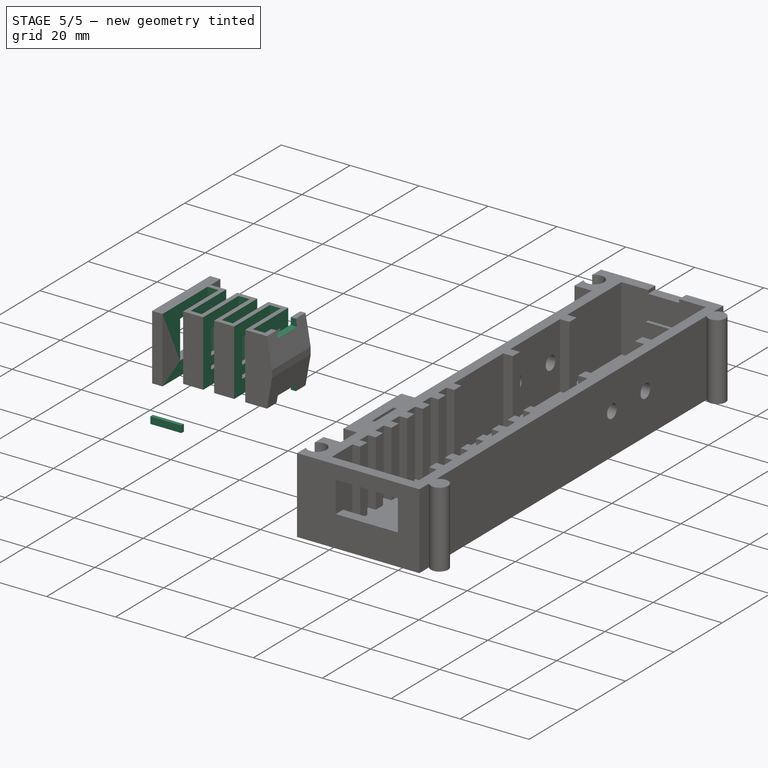
[diagram: stage 5 of 5 — iso view after this stage's code; geometry added in this stage tinted green]
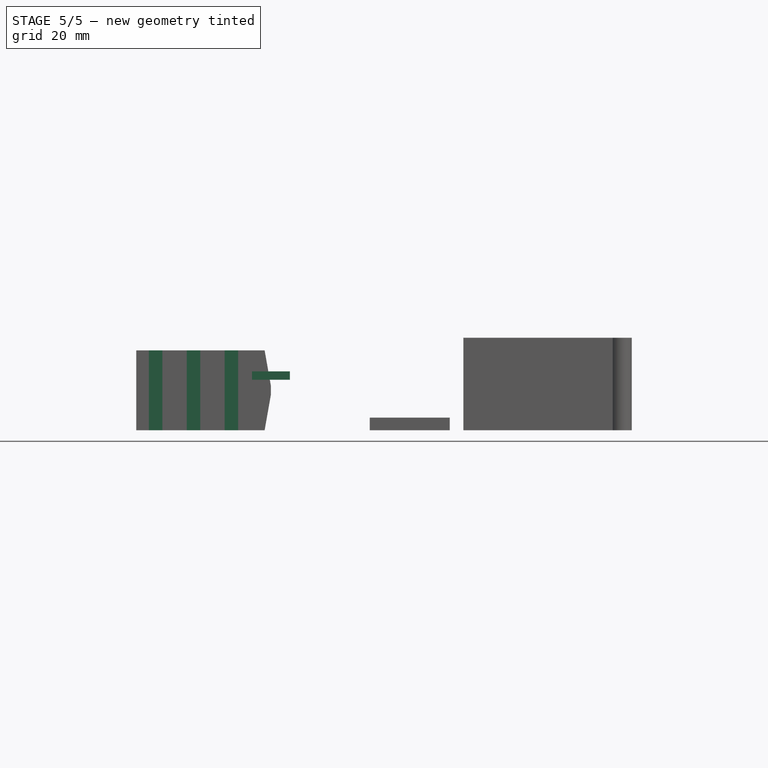
[diagram: stage 5 of 5 — front view after this stage's code; geometry added in this stage tinted green]
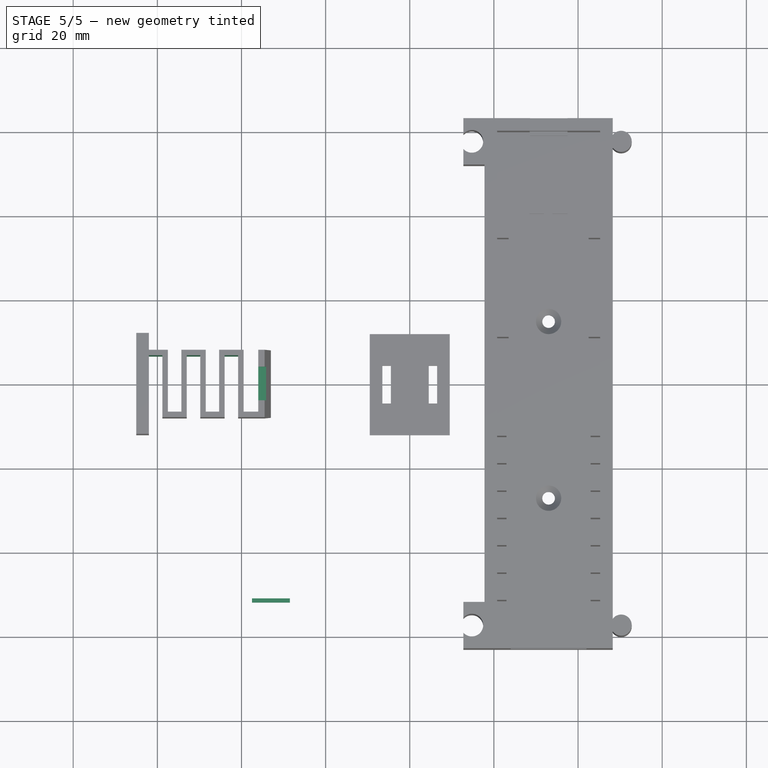
[diagram: stage 5 of 5 — top view after this stage's code; geometry added in this stage tinted green]
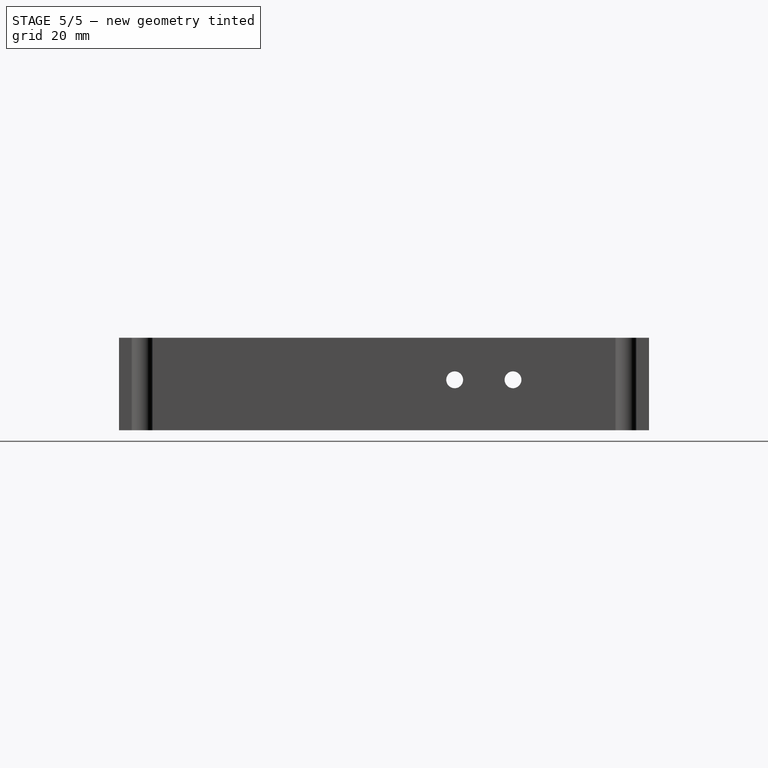
[diagram: stage 5 of 5 — right view after this stage's code; geometry added in this stage tinted green]
FEATURE [Sketcher::SketchObject] Sketch014  label="Battery holder fixed contact pad"
  Placement = pos=(0,-52,0) rot=(0,0.707107,0.707107;3.14159rad)
  expr: Constraints[15] = Spreadsheet.Battery18650Diameter / 2
  expr: Constraints[13] = Spreadsheet.VerySmallAddition * 2
  expr: Constraints[14] = Spreadsheet.Battery18650Diameter / 2 + Spreadsheet.InternalWallThickness
  expr: Constraints[2] = Spreadsheet.Battery18650Diameter + Spreadsheet.InternalWallThickness + Spreadsheet.VerySmallAddition
  expr: Constraints[1] = Spreadsheet.BatteryHolderAxisToY
  sketch-geometry (5):
    g0: LineSegment [constr] StartX=33 StartY=22 StartZ=0 EndX=33 EndY=0 EndZ=0
    g1: LineSegment StartX=28.5 StartY=14 StartZ=0 EndX=37.5 EndY=14 EndZ=0
    g2: LineSegment StartX=37.5 StartY=14 StartZ=0 EndX=37.5 EndY=12 EndZ=0
    g3: LineSegment StartX=37.5 StartY=12 StartZ=0 EndX=28.5 EndY=12 EndZ=0
    g4: LineSegment StartX=28.5 StartY=12 StartZ=0 EndX=28.5 EndY=14 EndZ=0
  constraints (16):
    c: Vertical(g0)
    c: DistanceX(g-1,g0) = 33
    c: DistanceY(g0,g0) = 22
    c: PointOnObject(g0,g-1)
    c: Coincident(g1,g2)
    c: Coincident(g2,g3)
    c: Coincident(g3,g4)
    c: Coincident(g4,g1)
    c: Horizontal(g1)
    c: Horizontal(g3)
    c: Vertical(g2)
    c: Vertical(g4)
    c: Symmetric(g1,g1,g0)
    c: DistanceY(g2,g1) = 2
    c: DistanceY(g0,g2) = 12
    c: DistanceX(g1,g1) = 9
FEATURE [PartDesign::Pad] Pad002  label="Battery holder fixed contact padding"
  Length = 1
  Length2 = 100
  Placement = pos=(0,-52,0) rot=(0,0.707107,0.707107;3.14159rad)
  Sketch = -> Sketch014
  Type = 0
  expr: Length = Spreadsheet.VerySmallAddition
FEATURE [Sketcher::SketchObject] Sketch016  label="Contact plate socket"
  Placement = pos=(-33,0,0) rot=(0.57735,0.57735,0.57735;2.0944rad)
  Support = -> Pocket010 [Face17]
  expr: Constraints[23] = Spreadsheet.SpringContactSpringWorkWidth - Spreadsheet.SmallAddition * 4
  expr: Constraints[21] = Spreadsheet.VerySmallAddition + Spreadsheet.Battery18650Diameter
  expr: Constraints[16] = Spreadsheet.SmallAddition
  sketch-geometry (8):
    g0: LineSegment StartX=-4 StartY=19 StartZ=0 EndX=-4 EndY=17 EndZ=0
    g1: LineSegment StartX=-4 StartY=17 StartZ=0 EndX=4 EndY=17 EndZ=0
    g2: LineSegment StartX=4 StartY=17 StartZ=0 EndX=4 EndY=19 EndZ=0
    g3: LineSegment StartX=4 StartY=0 StartZ=0 EndX=4 EndY=2 EndZ=0
    g4: LineSegment StartX=4 StartY=2 StartZ=0 EndX=-4 EndY=2 EndZ=0
    g5: LineSegment StartX=-4 StartY=2 StartZ=0 EndX=-4 EndY=0 EndZ=0
    g6: LineSegment StartX=-4 StartY=0 StartZ=0 EndX=4 EndY=0 EndZ=0
    g7: LineSegment StartX=-4 StartY=19 StartZ=0 EndX=4 EndY=19 EndZ=0
  constraints (25):
    c: Vertical(g0)
    c: Coincident(g1,g0)
    c: Horizontal(g1)
    c: Coincident(g2,g1)
    c: Vertical(g2)
    c: Vertical(g3)
    c: Coincident(g4,g3)
    c: Horizontal(g4)
    c: Coincident(g5,g4)
    c: Vertical(g5)
    c: Equal(g1,g4)
    c: Equal(g5,g3)
    c: Equal(g3,g2)
    c: Equal(g2,g0)
    c: Symmetric(g0,g2,g-2)
    c: PointOnObject(g5,g-1)
    c: DistanceY(g0,g0) = 2
    c: Coincident(g6,g5)
    c: Coincident(g6,g3)
    c: Coincident(g7,g2)
    c: Horizontal(g7)
    c: DistanceY(g3,g2) = 19
    c: Symmetric(g5,g3,g-2)
    c: DistanceX(g0,g1) = 8
    c: Coincident(g0,g7)
FEATURE [PartDesign::Pocket] Pocket011  label="Spring contact plate socket"
  Length = 4
  Sketch = -> Sketch016
  Type = 0
  expr: Length = Spreadsheet.MediumAddition
FEATURE [Sketcher::SketchObject] Sketch018
  Placement = pos=(0,0,19) rot=(0,0,1;0rad)
  Support = -> Pocket011 [Face4]
  expr: Constraints[58] = Spreadsheet.SpringContactSpringWorkWidth + Spreadsheet.MediumAddition
  expr: Constraints[71] = Spreadsheet.SpringContactSpringPartThickness
  expr: Constraints[103] = Spreadsheet.VerySmallAddition + Spreadsheet.SmallAddition
  expr: Constraints[102] = Spreadsheet.SpringContactWorkHeight + Spreadsheet.SmallAddition - Spreadsheet.SpringContactBaseHeight
  expr: Constraints[69] = Spreadsheet.SpringContactSpringPartThickness
  expr: Constraints[67] = Spreadsheet.SpringContactSpringPartThickness
  expr: Constraints[56] = Spreadsheet.SpringContactSpringWorkWidth
  expr: Constraints[45] = Spreadsheet.SmallAddition + Spreadsheet.SpringContactWorkHeight - Spreadsheet.SpringContactBaseHeight + Spreadsheet.SpringContactAxisToY
  expr: Constraints[100] = Spreadsheet.SpringContactSpringPartThickness
  expr: Constraints[60] = Spreadsheet.SpringContactSpringPartThickness
  expr: Constraints[68] = Spreadsheet.SpringContactSpringPartGap
  expr: Constraints[97] = Spreadsheet.SpringContactSpringPartGap
  expr: Constraints[62] = Spreadsheet.SpringContactSpringPartThickness
  expr: Constraints[63] = Spreadsheet.SpringContactSpringPartThickness
  expr: Constraints[98] = Spreadsheet.SpringContactSpringPartThickness
  expr: Constraints[66] = Spreadsheet.SpringContactSpringPartThickness
  expr: Constraints[65] = Spreadsheet.SpringContactSpringPartGap
  expr: Constraints[99] = Spreadsheet.SpringContactSpringPartThickness
  expr: Constraints[72] = Spreadsheet.SpringContactSpringPartThickness
  expr: Constraints[61] = Spreadsheet.SpringContactSpringPartGap
  expr: Constraints[70] = Spreadsheet.SpringContactSpringPartGap
  expr: Constraints[104] = Spreadsheet.MediumAddition
  sketch-geometry (37):
    g0: LineSegment StartX=-62 StartY=8 StartZ=0 EndX=-57.5 EndY=8 EndZ=0
    g1: LineSegment StartX=-57.5 StartY=8 StartZ=0 EndX=-57.5 EndY=-6.7 EndZ=0
    g2: LineSegment StartX=-57.5 StartY=-6.7 StartZ=0 EndX=-54.3 EndY=-6.7 EndZ=0
    g3: LineSegment StartX=-54.3 StartY=-6.7 StartZ=0 EndX=-54.3 EndY=8 EndZ=0
    g4: LineSegment StartX=-54.3 StartY=8 StartZ=0 EndX=-48.5 EndY=8 EndZ=0
    g5: LineSegment [constr] StartX=-57.5 StartY=8 StartZ=0 EndX=-54.3 EndY=8 EndZ=0
    g6: LineSegment StartX=-62 StartY=6.7 StartZ=0 EndX=-58.8 EndY=6.7 EndZ=0
    g7: LineSegment StartX=-58.8 StartY=6.7 StartZ=0 EndX=-58.8 EndY=-8 EndZ=0
    g8: LineSegment StartX=-58.8 StartY=-8 StartZ=0 EndX=-53 EndY=-8 EndZ=0
    g9: LineSegment StartX=-53 StartY=-8 StartZ=0 EndX=-53 EndY=6.7 EndZ=0
    g10: LineSegment StartX=-53 StartY=6.7 StartZ=0 EndX=-49.8 EndY=6.7 EndZ=0
    g11: LineSegment StartX=-49.8 StartY=6.7 StartZ=0 EndX=-49.8 EndY=-8 EndZ=0
    g12: LineSegment StartX=-48.5 StartY=8 StartZ=0 EndX=-48.5 EndY=-6.7 EndZ=0
    g13: LineSegment StartX=-48.5 StartY=-6.7 StartZ=0 EndX=-45.3 EndY=-6.7 EndZ=0
    g14: LineSegment StartX=-45.3 StartY=-6.7 StartZ=0 EndX=-45.3 EndY=8 EndZ=0
    g15: LineSegment StartX=-49.8 StartY=-8 StartZ=0 EndX=-44 EndY=-8 EndZ=0
    g16: LineSegment StartX=-44 StartY=-8 StartZ=0 EndX=-44 EndY=6.7 EndZ=0
    g17: LineSegment [constr] StartX=-62 StartY=8 StartZ=0 EndX=-62 EndY=6.7 EndZ=0
    g18: LineSegment [constr] StartX=-48.5 StartY=8 StartZ=0 EndX=-45.3 EndY=8 EndZ=0
    g19: LineSegment StartX=-62 StartY=8 StartZ=0 EndX=-62 EndY=10 EndZ=0
    g20: LineSegment StartX=-62 StartY=10 StartZ=0 EndX=-29 EndY=10 EndZ=0
    g21: LineSegment StartX=-29 StartY=10 StartZ=0 EndX=-29 EndY=-10 EndZ=0
    g22: LineSegment StartX=-29 StartY=-10 StartZ=0 EndX=-62 EndY=-10 EndZ=0
    g23: LineSegment StartX=-62 StartY=-10 StartZ=0 EndX=-62 EndY=6.7 EndZ=0
    g24: LineSegment [constr] StartX=-58.8 StartY=-8 StartZ=0 EndX=-62 EndY=-8 EndZ=0
    g25: LineSegment [constr] StartX=-53 StartY=-8 StartZ=0 EndX=-49.8 EndY=-8 EndZ=0
    g26: LineSegment StartX=-45.3 StartY=8 StartZ=0 EndX=-39.5 EndY=8 EndZ=0
    g27: LineSegment StartX=-44 StartY=6.7 StartZ=0 EndX=-40.8 EndY=6.7 EndZ=0
    g28: LineSegment StartX=-40.8 StartY=6.7 StartZ=0 EndX=-40.8 EndY=-8 EndZ=0
    g29: LineSegment StartX=-39.5 StartY=8 StartZ=0 EndX=-39.5 EndY=-6.7 EndZ=0
    g30: LineSegment StartX=-39.5 StartY=-6.7 StartZ=0 EndX=-36 EndY=-6.7 EndZ=0
    g31: LineSegment StartX=-36 StartY=-6.7 StartZ=0 EndX=-36 EndY=8 EndZ=0
    g32: LineSegment StartX=-40.8 StartY=-8 StartZ=0 EndX=-33 EndY=-8 EndZ=0
    g33: LineSegment StartX=-33 StartY=-8 StartZ=0 EndX=-33 EndY=8 EndZ=0
    g34: LineSegment StartX=-33 StartY=8 StartZ=0 EndX=-36 EndY=8 EndZ=0
    g35: LineSegment [constr] StartX=-44 StartY=-8 StartZ=0 EndX=-40.8 EndY=-8 EndZ=0
    g36: LineSegment [constr] StartX=-39.5 StartY=8 StartZ=0 EndX=-36 EndY=8 EndZ=0
  constraints (105):
    c: Coincident(g1,g0)
    c: Vertical(g1)
    c: Coincident(g2,g1)
    c: Horizontal(g2)
    c: Vertical(g3)
    c: Coincident(g2,g3)
    c: Coincident(g3,g4)
    c: Horizontal(g0)
    c: Coincident(g5,g0)
    c: Coincident(g5,g3)
    c: Horizontal(g5)
    c: Horizontal(g4)
    c: Coincident(g7,g6)
    c: Vertical(g7)
    c: Coincident(g8,g7)
    c: Horizontal(g8)
    c: Coincident(g9,g8)
    c: Vertical(g9)
    c: Coincident(g10,g9)
    c: Coincident(g11,g10)
    c: Vertical(g11)
    c: Coincident(g12,g4)
    c: Vertical(g12)
    c: Coincident(g13,g12)
    c: Horizontal(g13)
    c: Coincident(g14,g13)
    c: Vertical(g14)
    c: Horizontal(g15)
    c: Coincident(g16,g15)
    c: Vertical(g16)
    c: Coincident(g17,g6)
    c: Vertical(g17)
    c: Coincident(g18,g4)
    c: Horizontal(g18)
    c: Coincident(g19,g0)
    c: Vertical(g19)
    c: Horizontal(g20)
    c: Coincident(g21,g20)
    c: Vertical(g21)
    c: Coincident(g22,g21)
    c: Horizontal(g22)
    c: Coincident(g23,g22)
    c: Coincident(g23,g6)
    c: Vertical(g23)
    c: Coincident(g19,g20)
    c: DistanceX(g19,g-1) = 62
    c: Coincident(g0,g17)
    c: Horizontal(g6)
    c: Horizontal(g10)
    c: PointOnObject(g24,g23)
    c: Horizontal(g24)
    c: Coincident(g25,g8)
    c: Coincident(g25,g11)
    c: Horizontal(g25)
    c: Coincident(g11,g15)
    c: Coincident(g14,g18)
    c: DistanceY(g24,g0) = 16
    c: Symmetric(g22,g19,g-1)
    c: DistanceY(g21,g20) = 20
    c: Coincident(g7,g24)
    c: DistanceY(g6,g0) = 1.3
    c: DistanceX(g24,g7) = 3.2
    c: DistanceX(g6,g0) = 1.3
    c: DistanceY(g7,g1) = 1.3
    c: Symmetric(g0,g24,g-1)
    c: DistanceX(g0,g3) = 3.2
    c: DistanceX(g2,g8) = 1.3
    c: DistanceY(g9,g3) = 1.3
    c: DistanceX(g8,g11) = 3.2
    c: DistanceX(g10,g4) = 1.3
    c: DistanceX(g4,g14) = 3.2
    c: DistanceY(g11,g12) = 1.3
    c: DistanceX(g14,g16) = 1.3
    c: Coincident(g26,g14)
    c: Horizontal(g26)
    c: Coincident(g27,g16)
    c: Horizontal(g27)
    c: Coincident(g28,g27)
    c: Vertical(g28)
    c: Coincident(g29,g26)
    c: Vertical(g29)
    c: Coincident(g30,g29)
    c: Horizontal(g30)
    c: Coincident(g31,g30)
    c: Vertical(g31)
    c: Horizontal(g32)
    c: Vertical(g33)
    c: Coincident(g34,g33)
    c: Coincident(g34,g31)
    c: Horizontal(g34)
    c: Coincident(g28,g32)
    c: Coincident(g35,g28)
    c: Horizontal(g35)
    c: Coincident(g15,g35)
    c: Coincident(g36,g31)
    c: Horizontal(g36)
    c: Coincident(g26,g36)
    c: DistanceX(g15,g28) = 3.2
    c: DistanceY(g27,g26) = 1.3
    c: DistanceX(g28,g29) = 1.3
    c: DistanceY(g32,g30) = 1.3
    c: Coincident(g32,g33)
    c: DistanceX(g24,g32) = 29
    c: DistanceX(g31,g33) = 3
    c: DistanceX(g32,g21) = 4
FEATURE [PartDesign::Pocket] Pocket012  label="Spring"
  Length = 20
  Sketch = -> Sketch018
  Type = 0
  expr: Length = Spreadsheet.SmallAddition + Spreadsheet.Battery18650Diameter
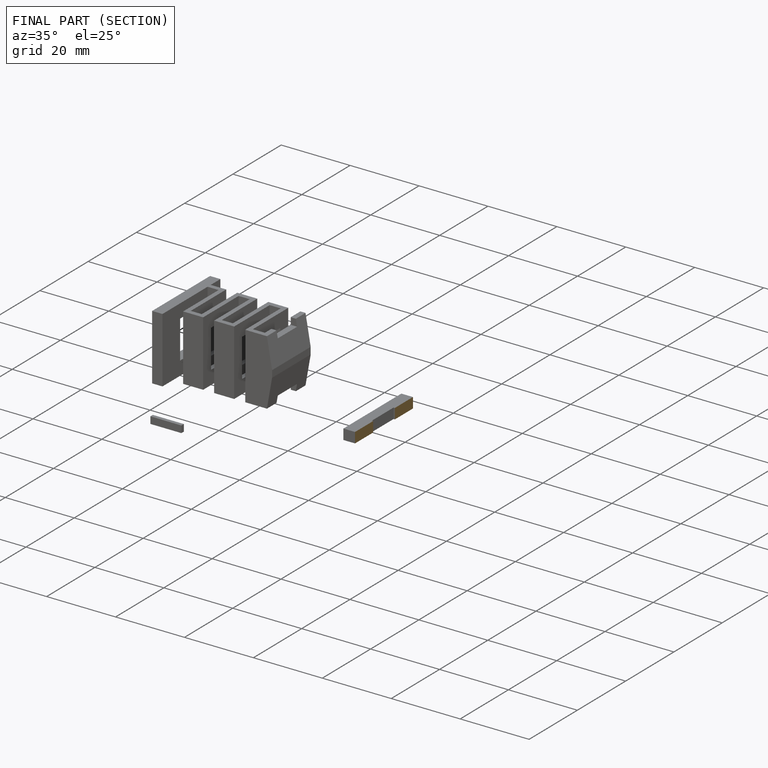
[diagram: finished part — half-section view (interior)]
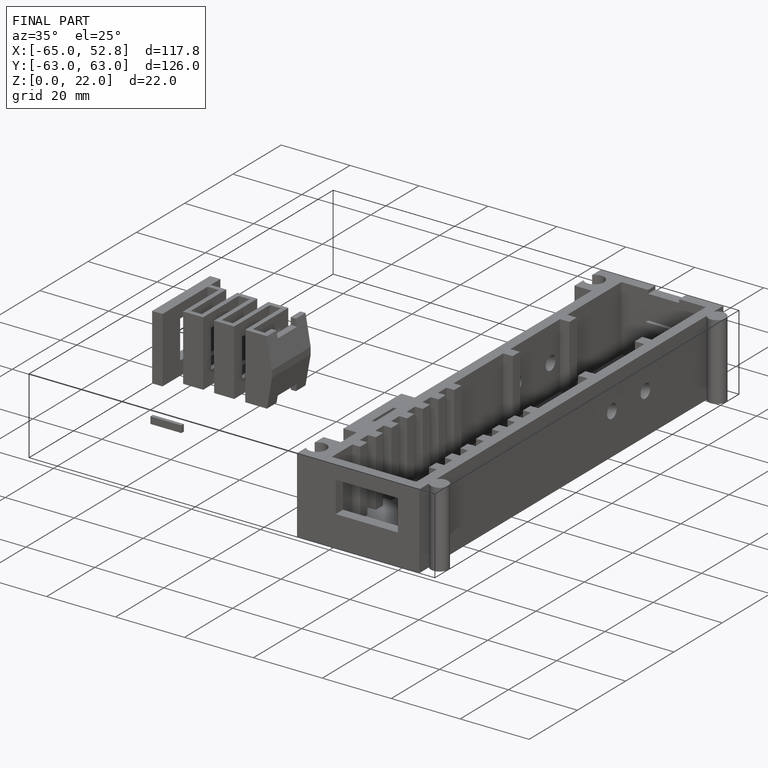
[diagram: finished part — iso view with bounding-box wireframe]
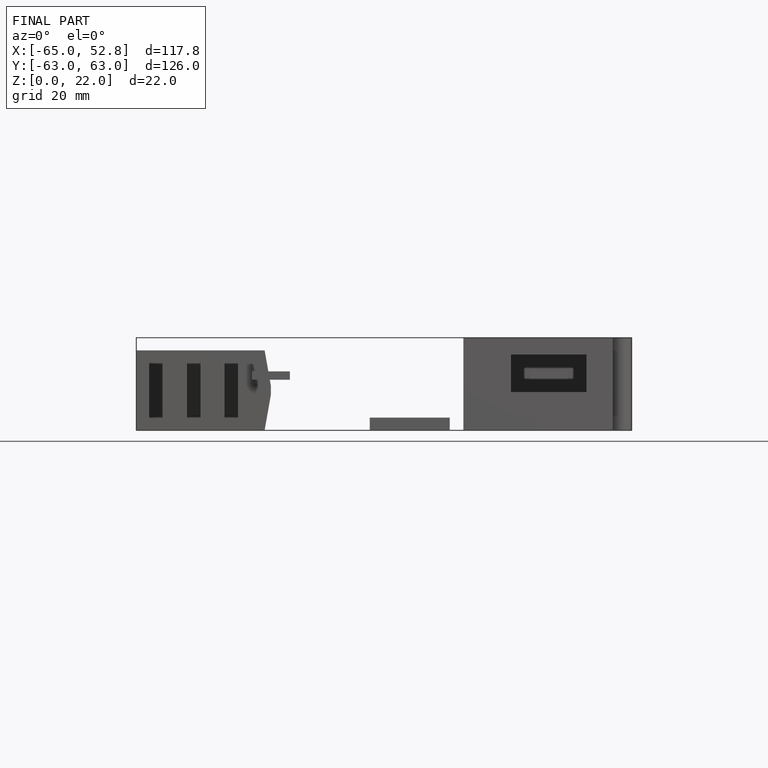
[diagram: finished part — front view with bounding-box wireframe]
